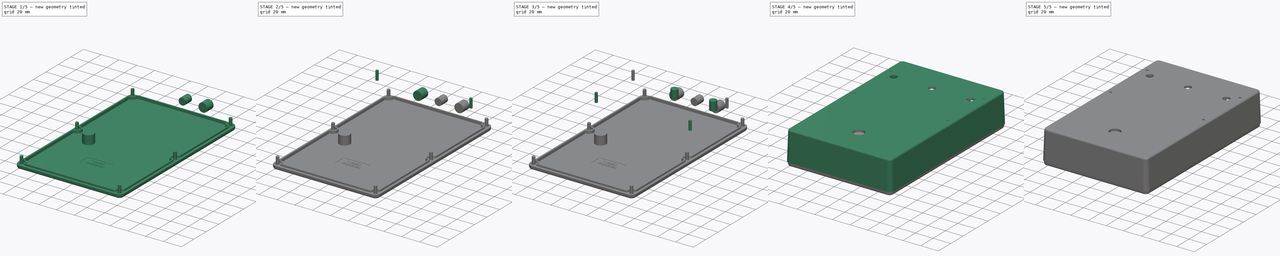
[diagram: build sequence overview — one tinted view per stage of 5, left to right]
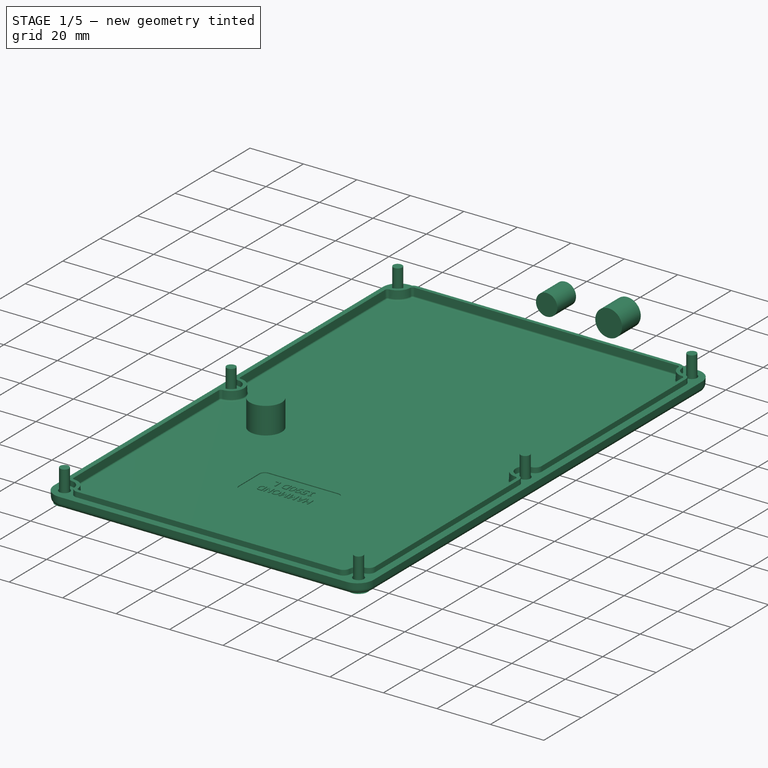
[diagram: stage 1 of 5 — iso view after this stage's code; geometry added in this stage tinted green]
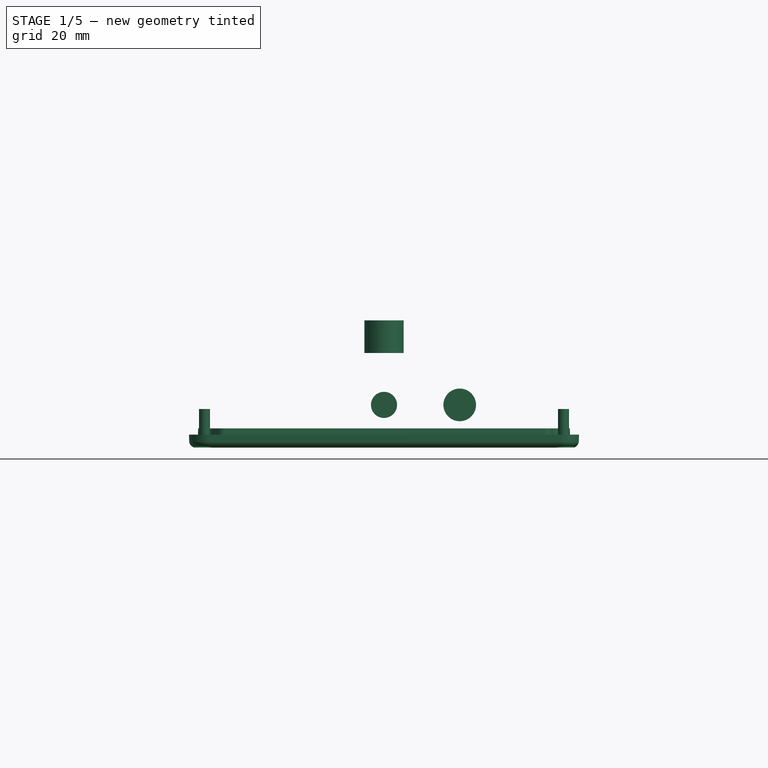
[diagram: stage 1 of 5 — front view after this stage's code; geometry added in this stage tinted green]
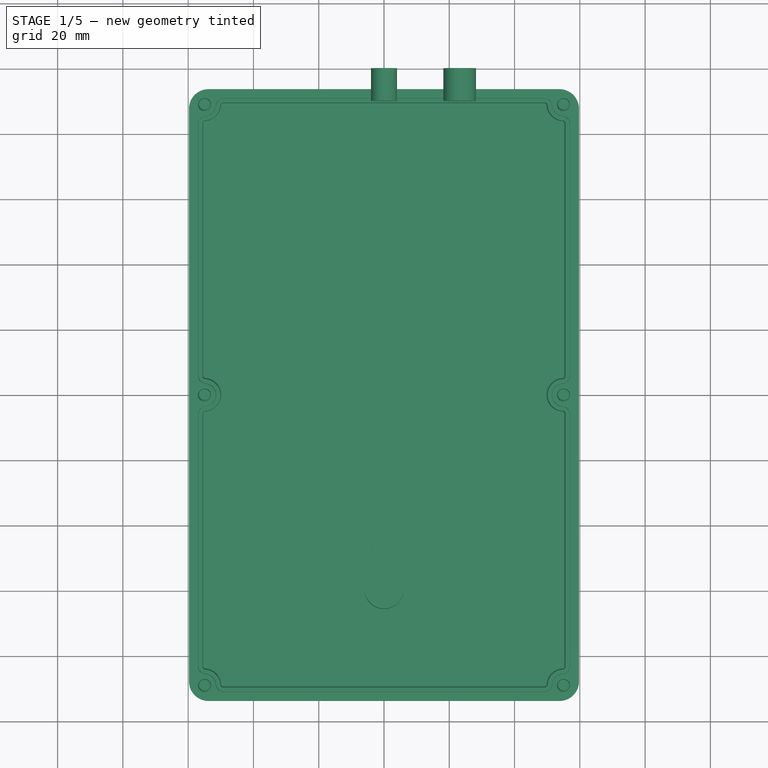
[diagram: stage 1 of 5 — top view after this stage's code; geometry added in this stage tinted green]
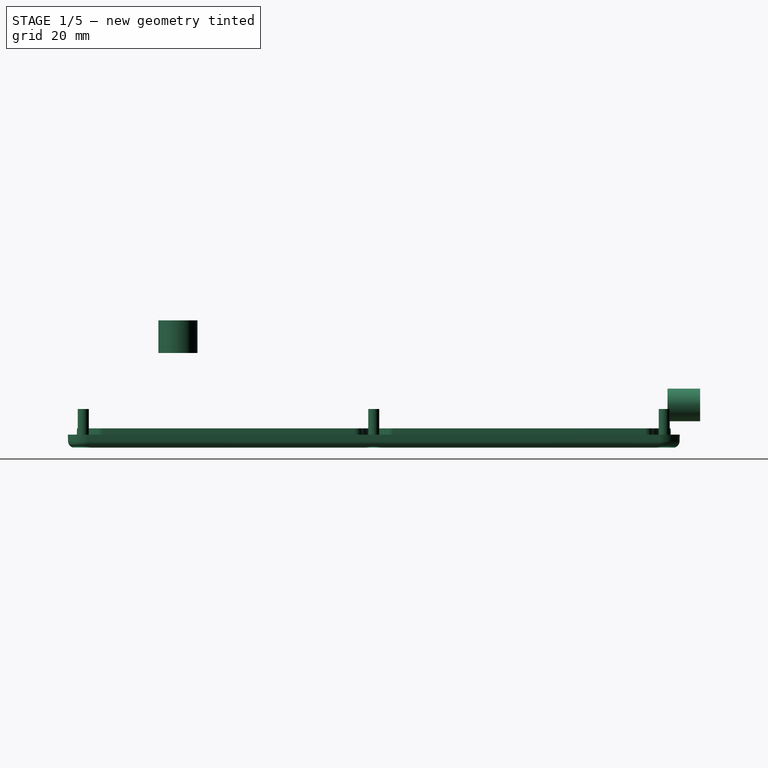
[diagram: stage 1 of 5 — right view after this stage's code; geometry added in this stage tinted green]
FCSTD DOCUMENT  (FreeCAD 0.19R17089 +1543 (Git))
Label: #000-000 - Mu-Tron Phasor II - ASM3
License: All rights reserved
LicenseURL: http://en.wikipedia.org/wiki/All_rights_reserved
objects: App::Link×106, Part::Feature×44, App::FeaturePython×41, Part::FeaturePython×32, App::Part×12, Part::Cylinder×11, PartDesign::ShapeBinder×9, App::LinkElement×8, PartDesign::Plane×5, Sketcher::SketchObject×5, PartDesign::Body×3, Part::MultiFuse×2, PartDesign::Pocket×2, Part::Cut×1, PartDesign::Pad×1, PartDesign::Revolution×1, PartDesign::CoordinateSystem×1
note: 120 computed .brp shape members not serialized (recipe doc carries the construction recipe); baked Part::Feature solids carry a one-line shape summary decoded from their .brp

FEATURE [PartDesign::Plane] DatumPlane  label="Origin_XY_DatumPlane"
  AttachmentOffset = pos=(-75,-100,0) rot=(0,0,1;0rad)
  Length = 104.339
  MapMode = 5
  Placement = pos=(-75,-100,0) rot=(0,0,1;0rad)
  ResizeMode = 1
  Support = -> [XY_Plane001]
  Width = 200
FEATURE [Part::Feature] Part__Feature  label="#700-001 - 1590DD Box"
  Placement = pos=(0,0,0) rot=(0.707107,0.707107,0;3.14159rad)
  shape: bbox 120 x 188 x 451.1 mm, 273 faces (baked)
FEATURE [Part::Feature] Part__Feature001  label="#700-001 - 1590DD - Lid"
  Placement = pos=(0,0,0) rot=(0,0.707107,0.707107;3.14159rad)
  shape: bbox 187.5 x 5.937 x 119.5 mm, 345 faces (baked)
FEATURE [Part::Feature] Part__Feature002  label="#700-001 - 1590DD - Screw 4/6"
  Placement = pos=(1.2e-14,1.5362,-55) rot=(0,1,0;0.650238rad)
  shape: bbox 6.871 x 11.85 x 6.871 mm, 25 faces (baked)
FEATURE [Part::Feature] Part__Feature003  label="#700-001 - 1590DD - Screw 2/6"
  Placement = pos=(-1.2e-14,1.5362,55) rot=(0,1,0;0.650238rad)
  shape: bbox 6.871 x 11.85 x 6.871 mm, 25 faces (baked)
FEATURE [Part::Feature] Part__Feature004  label="#700-001 - 1590DD - Screw 1/6"
  Placement = pos=(-89,1.5362,55) rot=(0,1,0;0.650238rad)
  shape: bbox 6.871 x 11.85 x 6.871 mm, 25 faces (baked)
FEATURE [Part::Feature] Part__Feature005  label="#700-001 - 1590DD - Screw 3/6"
  Placement = pos=(-89,1.5362,-55) rot=(0,-1,0;0.529817rad)
  shape: bbox 6.871 x 11.85 x 6.871 mm, 25 faces (baked)
FEATURE [Part::Feature] Part__Feature006  label="#700-001 - 1590DD - Screw 5/6"
  Placement = pos=(89,1.5362,55) rot=(0,0,1;0rad)
  shape: bbox 6.871 x 11.85 x 6.871 mm, 25 faces (baked)
FEATURE [Part::Feature] Part__Feature007  label="#700-001 - 1590DD - Screw 6/6"
  Placement = pos=(89,1.5362,-55) rot=(0,0,1;0rad)
  shape: bbox 6.871 x 11.85 x 6.871 mm, 25 faces (baked)
FEATURE [Part::MultiFuse] Fusion  label="#700-000 - Enclosure - Lid & Screws, Fusion"
  Placement = pos=(0,0,0) rot=(0.57735,-0.57735,0.57735;4.18879rad)
  Shapes = -> [Part__Feature001,Part__Feature004,Part__Feature003,Part__Feature005,Part__Feature002,Part__Feature006,Part__Feature007]
FEATURE [Part::Cylinder] Cylinder008  label="Drill - Audio Jack 2/2 [D=10.0, X=23.2, Z=9.1]"
  Angle = 360
  AttacherType = Attacher::AttachEngine3D
  Height = 10
  Placement = pos=(23.2,90,9.1) rot=(-1,0,0;1.5708rad)
  Radius = 5
  expr: .Placement.Base.z = 1 + 1.6000000000000001 + 6.5
FEATURE [Part::Cylinder] Cylinder009  label="Drill - Power Jack [D=8.0, X=0.0, Y=9.1]"
  Angle = 360
  AttacherType = Attacher::AttachEngine3D
  Height = 10
  Placement = pos=(0,90,9.1) rot=(-1,0,0;1.5708rad)
  Radius = 4
FEATURE [PartDesign::Plane] DatumPlane002  label="DatumPlane_Rear_Inside"
  Length = 24.068
  MapMode = 5
  Placement = pos=(2.03e-14,91.387,3.19131) rot=(0,0.71934,-0.694658;3.14159rad)
  ResizeMode = 0
  Support = -> [ShapeBinder006]
  Width = 24.7538
FEATURE [PartDesign::Plane] DatumPlane003  label="DatumPlane_Top_Inside"
  Length = 24
  MapMode = 5
  Placement = pos=(0,0,30.5) rot=(0.707107,0.707107,0;3.14159rad)
  ResizeMode = 0
  Support = -> [ShapeBinder004]
  Width = 24
FEATURE [PartDesign::Plane] DatumPlane004  label="DatumPlane_Lid_Inside"
  Length = 24
  MapMode = 5
  Placement = pos=(0,0,-1.5) rot=(0,0,1;1.5708rad)
  ResizeMode = 0
  Support = -> [ShapeBinder]
  Width = 24
FEATURE [PartDesign::Body] Body  label="Datum References"
  Group = -> [DatumPlane,DatumPlane001,ShapeBinder,ShapeBinder001,ShapeBinder002,ShapeBinder003,ShapeBinder004,ShapeBinder005,ShapeBinder006,ShapeBinder007,ShapeBinder008,DatumPlane002,DatumPlane003,DatumPlane004]
  Origin = -> Origin001
  SingleSolid = true
FEATURE [App::Part] Part003  label="#700-000 - Datum References"
  Group = -> [Body]
  Origin = -> Origin004
FEATURE [Part::Cylinder] Cylinder010  label="Drill - Footswitch [D=12.0, X=0.0, Y=-60.0]"
  Angle = 360
  AttacherType = Attacher::AttachEngine3D
  Height = 10
  Placement = pos=(0,-60,25) rot=(0,0,1;0rad)
  Radius = 6
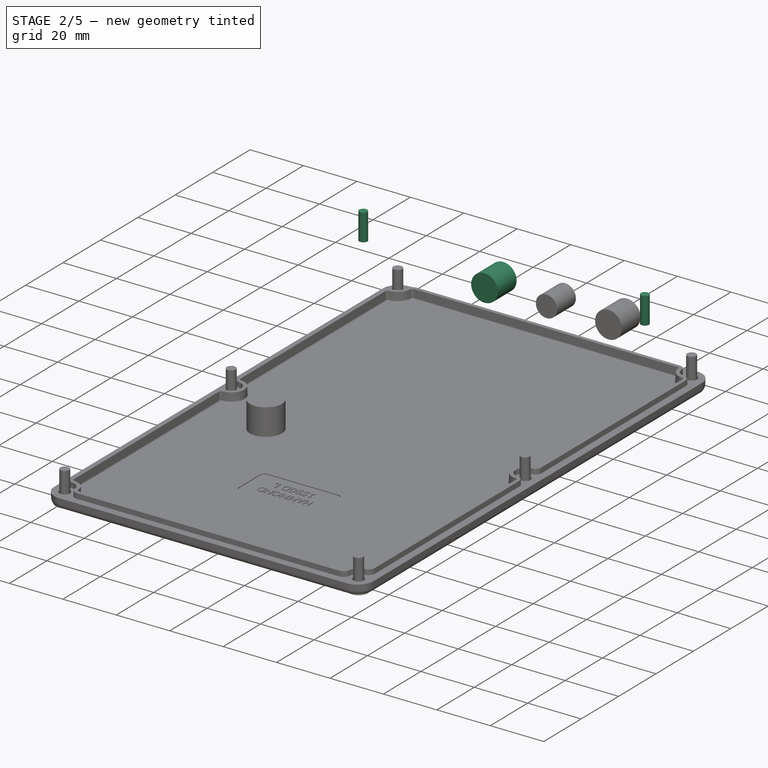
[diagram: stage 2 of 5 — iso view after this stage's code; geometry added in this stage tinted green]
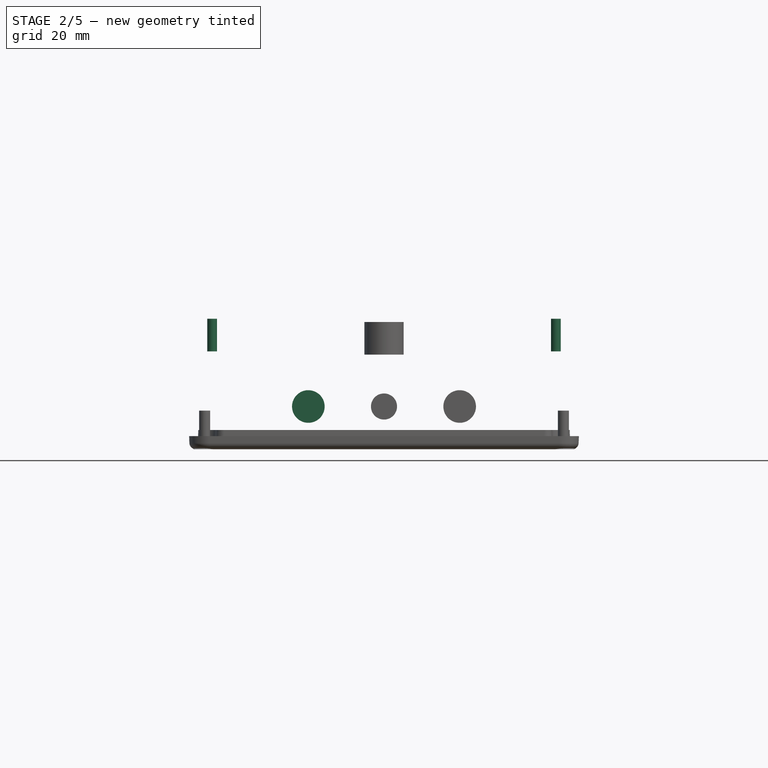
[diagram: stage 2 of 5 — front view after this stage's code; geometry added in this stage tinted green]
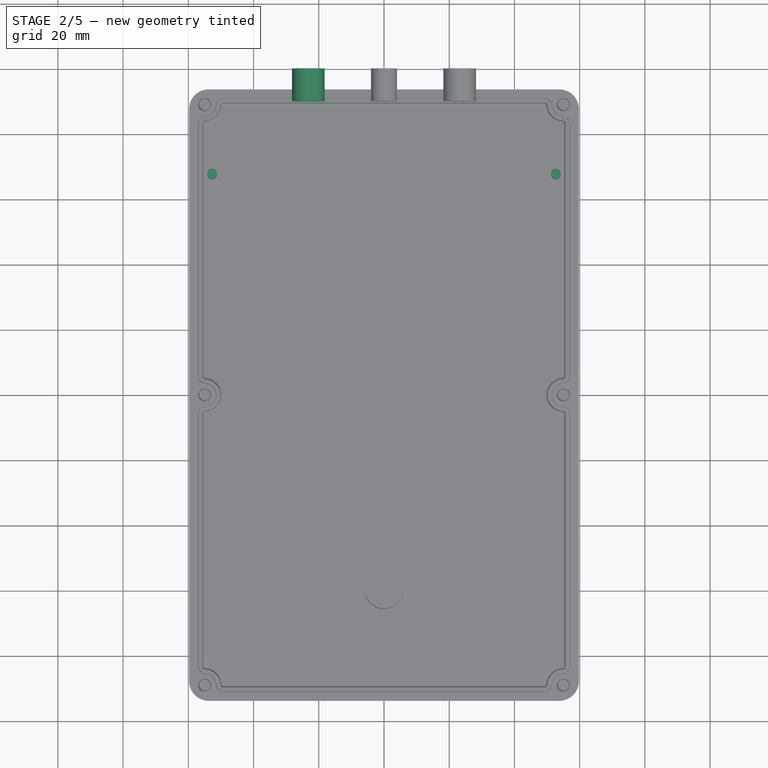
[diagram: stage 2 of 5 — top view after this stage's code; geometry added in this stage tinted green]
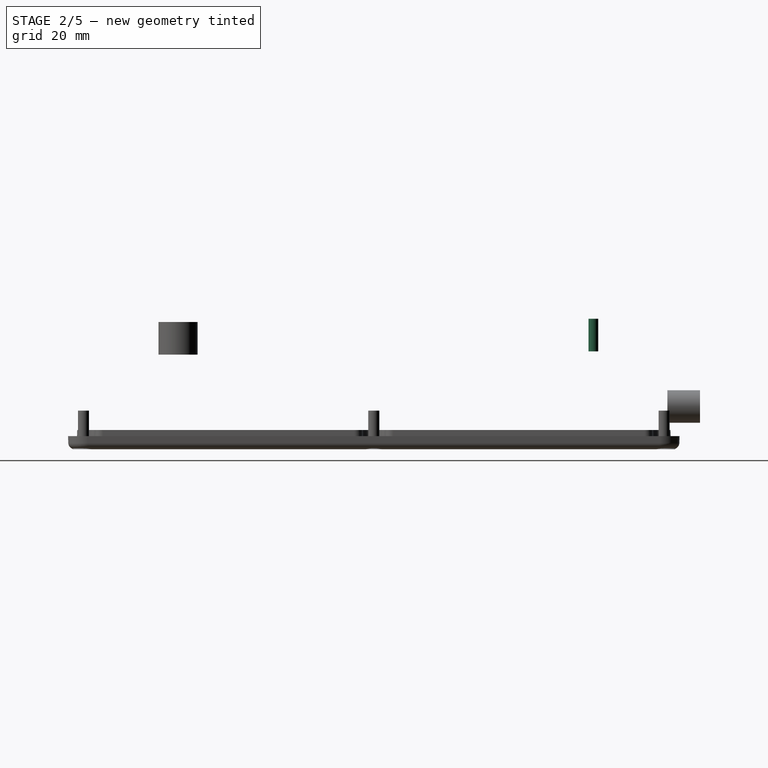
[diagram: stage 2 of 5 — right view after this stage's code; geometry added in this stage tinted green]
FEATURE [Part::Cylinder] Cylinder005  label="Drill - Standoff 2/4 [D=3.0, X=-52.705, Y=67.31]"
  Angle = 360
  AttacherType = Attacher::AttachEngine3D
  Height = 10
  Placement = pos=(-52.705,67.31,26) rot=(0,0,1;0rad)
  Radius = 1.5
FEATURE [Part::Cylinder] Cylinder006  label="Drill - Standoff 1/4 [D=3.0, X=52.705, Y=67.31]"
  Angle = 360
  AttacherType = Attacher::AttachEngine3D
  Height = 10
  Placement = pos=(52.705,67.31,26) rot=(0,0,1;0rad)
  Radius = 1.5
FEATURE [App::Part] Part001  label="#700-000 - Enclosure - Lid & Screws"
  Group = -> [Part__Feature004,Part__Feature007,Part__Feature005,Part__Feature001,Part__Feature003,Part__Feature006,Part__Feature002,Fusion]
  Origin = -> Origin002
  Placement = pos=(0,0,0) rot=(0,0,1;3.14159rad)
FEATURE [PartDesign::ShapeBinder] ShapeBinder  label="Enclosure_Lid_Inside"
  Placement = pos=(0,0,0) rot=(0.707107,0.707107,0;3.14159rad)
  Support = -> [Fusion]
  TraceSupport = false
FEATURE [PartDesign::ShapeBinder] ShapeBinder001  label="Enclosure_Lid_Lip"
  Placement = pos=(0,0,0) rot=(0.707107,0.707107,0;3.14159rad)
  Support = -> [Fusion]
  TraceSupport = false
FEATURE [PartDesign::ShapeBinder] ShapeBinder002  label="Enclosure_Lid_Outside"
  Placement = pos=(0,0,0) rot=(0.707107,0.707107,0;3.14159rad)
  Support = -> [Fusion]
  TraceSupport = false
FEATURE [PartDesign::ShapeBinder] ShapeBinder003  label="Enclosure_Box_Top_Outside"
  Placement = pos=(0,0,0) rot=(0.707107,0.707107,0;3.14159rad)
  Support = -> [Part__Feature]
  TraceSupport = false
FEATURE [PartDesign::ShapeBinder] ShapeBinder004  label="Enclosure_Box_Top_Inside"
  Placement = pos=(0,0,0) rot=(0.707107,0.707107,0;3.14159rad)
  Support = -> [Part__Feature]
  TraceSupport = false
FEATURE [PartDesign::ShapeBinder] ShapeBinder005  label="Enclosure_Box_Rear_Outside"
  Placement = pos=(0,0,0) rot=(0.707107,0.707107,0;3.14159rad)
  Support = -> [Part__Feature]
  TraceSupport = false
FEATURE [PartDesign::ShapeBinder] ShapeBinder006  label="Enclosure_Box_Rear_Inside"
  Placement = pos=(0,0,0) rot=(0.707107,0.707107,0;3.14159rad)
  Support = -> [Part__Feature]
  TraceSupport = false
FEATURE [PartDesign::ShapeBinder] ShapeBinder007  label="Enclosure_Box_Front_Outside"
  Placement = pos=(0,0,0) rot=(0.707107,0.707107,0;3.14159rad)
  Support = -> [Part__Feature]
  TraceSupport = false
FEATURE [PartDesign::ShapeBinder] ShapeBinder008  label="Enclosure_Box_Front_Inside"
  Placement = pos=(0,0,0) rot=(0.707107,0.707107,0;3.14159rad)
  Support = -> [Part__Feature]
  TraceSupport = false
FEATURE [Part::Cylinder] Cylinder007  label="Drill - Audio Jack 1/2 [D=10.0, X=-23.2, Z=9.1]"
  Angle = 360
  AttacherType = Attacher::AttachEngine3D
  Height = 10
  Placement = pos=(-23.2,90,9.1) rot=(-1,0,0;1.5708rad)
  Radius = 5
  expr: .Placement.Base.z = 1 + 1.6000000000000001 + 6.5
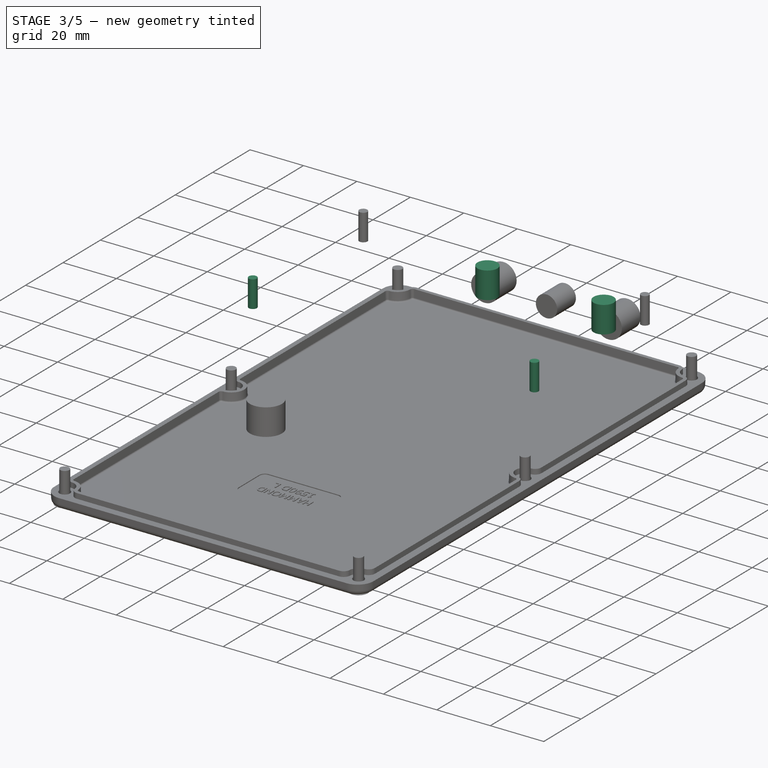
[diagram: stage 3 of 5 — iso view after this stage's code; geometry added in this stage tinted green]
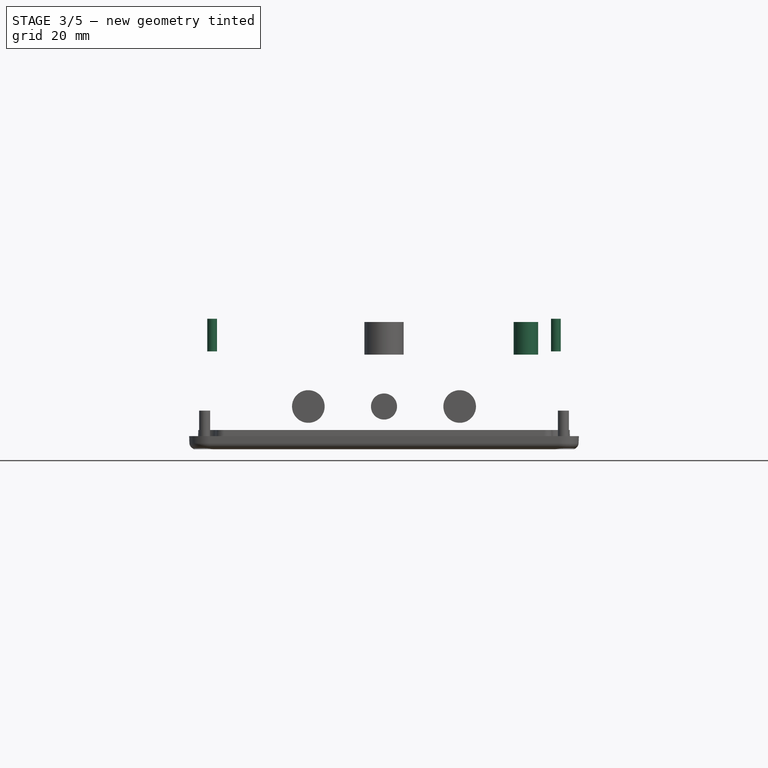
[diagram: stage 3 of 5 — front view after this stage's code; geometry added in this stage tinted green]
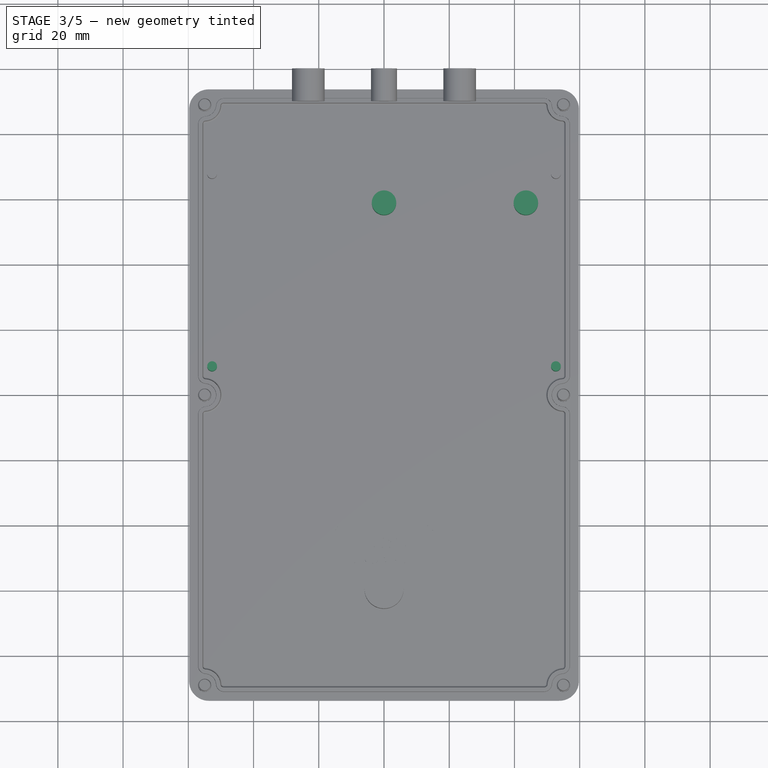
[diagram: stage 3 of 5 — top view after this stage's code; geometry added in this stage tinted green]
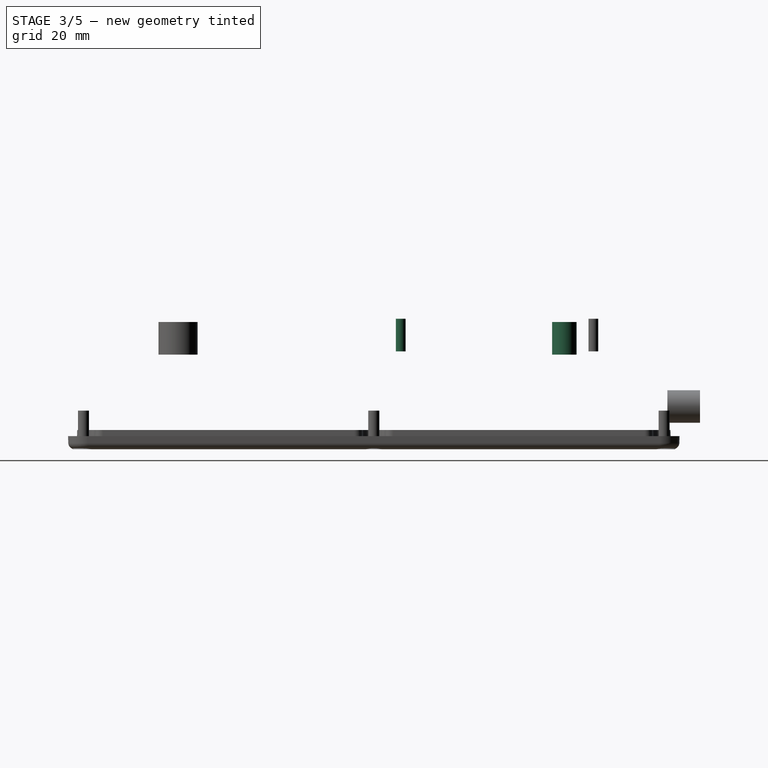
[diagram: stage 3 of 5 — right view after this stage's code; geometry added in this stage tinted green]
FEATURE [Part::Cylinder] Cylinder001  label="Drill - Potentiometer - Depth [D7.5, X=0.0, Y = 58.42]]"
  Angle = 360
  AttacherType = Attacher::AttachEngine3D
  Height = 10
  Placement = pos=(0,58.42,25) rot=(0,0,1;0rad)
  Radius = 3.75
FEATURE [Part::Cylinder] Cylinder002  label="Drill - Potentiometer - Feedback [D=7.5, X=43.5, Y=58.42]"
  Angle = 360
  AttacherType = Attacher::AttachEngine3D
  Height = 10
  Placement = pos=(43.498,58.42,25) rot=(0,0,1;0rad)
  Radius = 3.75
FEATURE [PartDesign::Plane] DatumPlane001  label="Enclosure_Face_XY_DatumPlane"
  Length = 24
  MapMode = 5
  Placement = pos=(0,0,30.5) rot=(1,0,0;3.14159rad)
  ResizeMode = 0
  Width = 24
FEATURE [Part::Cylinder] Cylinder003  label="Drill - Standoff 4/4 [D=3.0, X=-52.705, Y=8.26]"
  Angle = 360
  AttacherType = Attacher::AttachEngine3D
  Height = 10
  Placement = pos=(-52.705,8.26,26) rot=(0,0,1;0rad)
  Radius = 1.5
FEATURE [Part::Cylinder] Cylinder004  label="Drill - Standoff 3/4 [D=3.0, X=52.705, Y=8.26]"
  Angle = 360
  AttacherType = Attacher::AttachEngine3D
  Height = 10
  Placement = pos=(52.705,8.26,26) rot=(0,0,1;0rad)
  Radius = 1.5
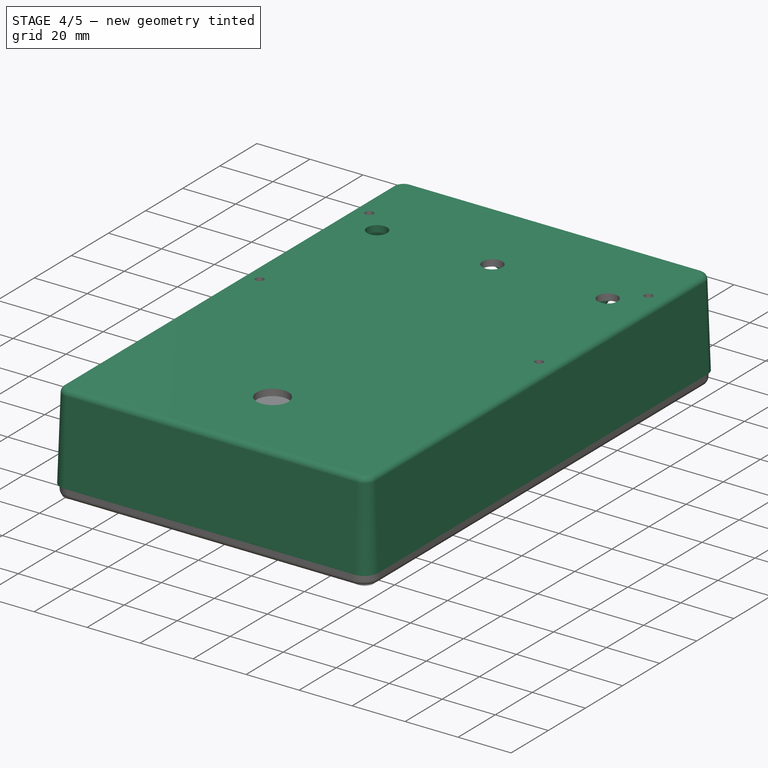
[diagram: stage 4 of 5 — iso view after this stage's code; geometry added in this stage tinted green]
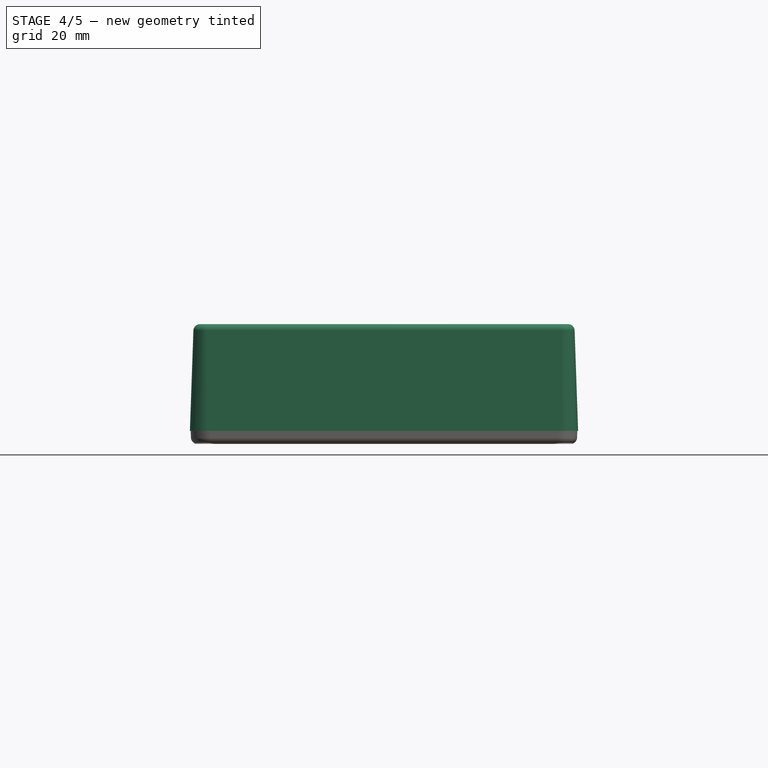
[diagram: stage 4 of 5 — front view after this stage's code; geometry added in this stage tinted green]
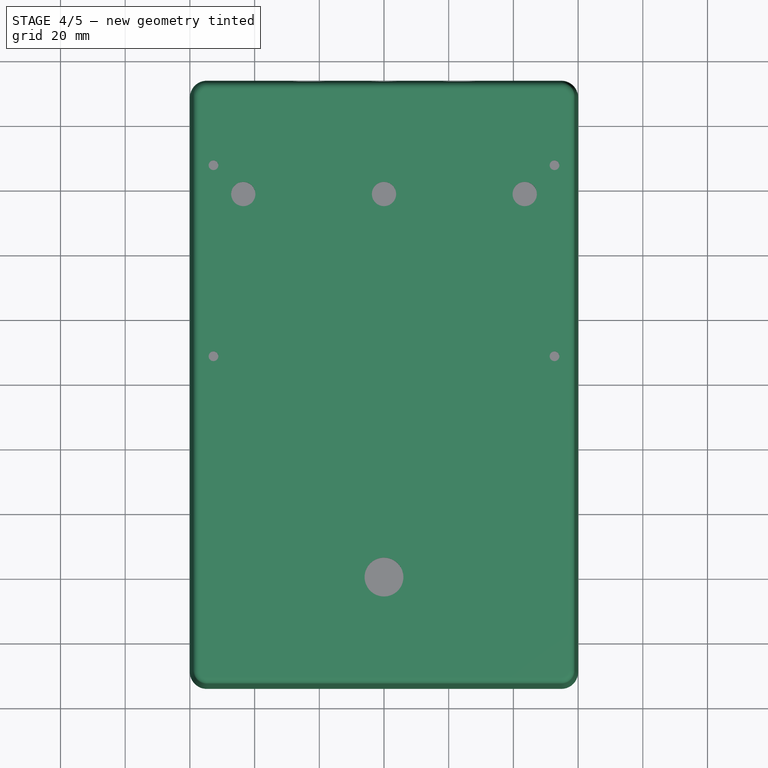
[diagram: stage 4 of 5 — top view after this stage's code; geometry added in this stage tinted green]
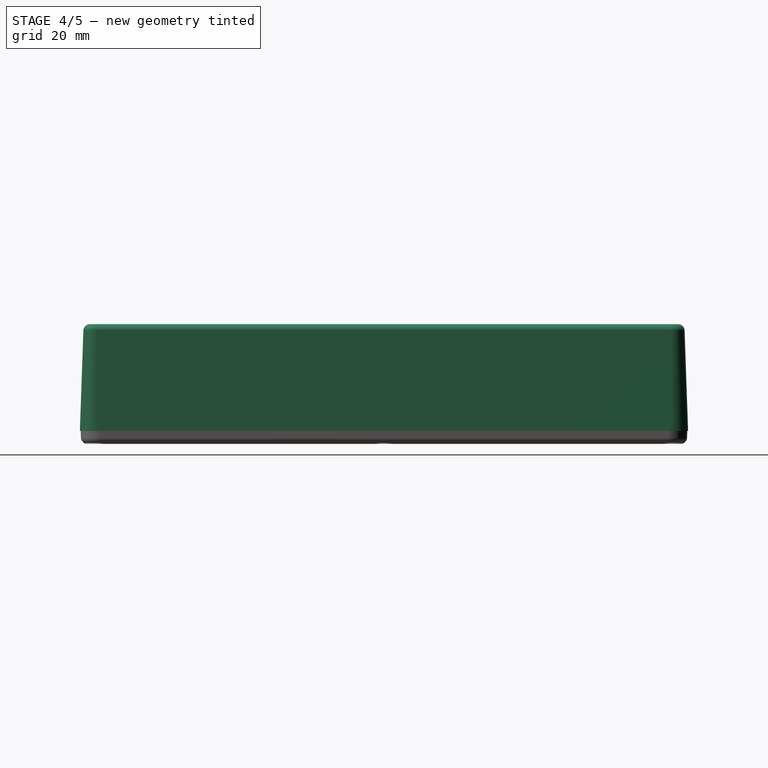
[diagram: stage 4 of 5 — right view after this stage's code; geometry added in this stage tinted green]
FEATURE [Part::Cylinder] Cylinder  label="Drill - Potentiometer - Rate [D=7.5, X=-43.5, Y=58.42]"
  Angle = 360
  AttacherType = Attacher::AttachEngine3D
  Height = 10
  Placement = pos=(-43.498,58.42,25) rot=(0,0,1;0rad)
  Radius = 3.75
FEATURE [Part::MultiFuse] Fusion001  label="Drills"
  Shapes = -> [Cylinder,Cylinder002,Cylinder001,Cylinder003,Cylinder004,Cylinder005,Cylinder006,Cylinder007,Cylinder008,Cylinder009,Cylinder010]
FEATURE [Part::Cut] Cut  label="#700-000 - Enclosure - Box, Drilled"
  Base = -> Part__Feature
  Tool = -> Fusion001
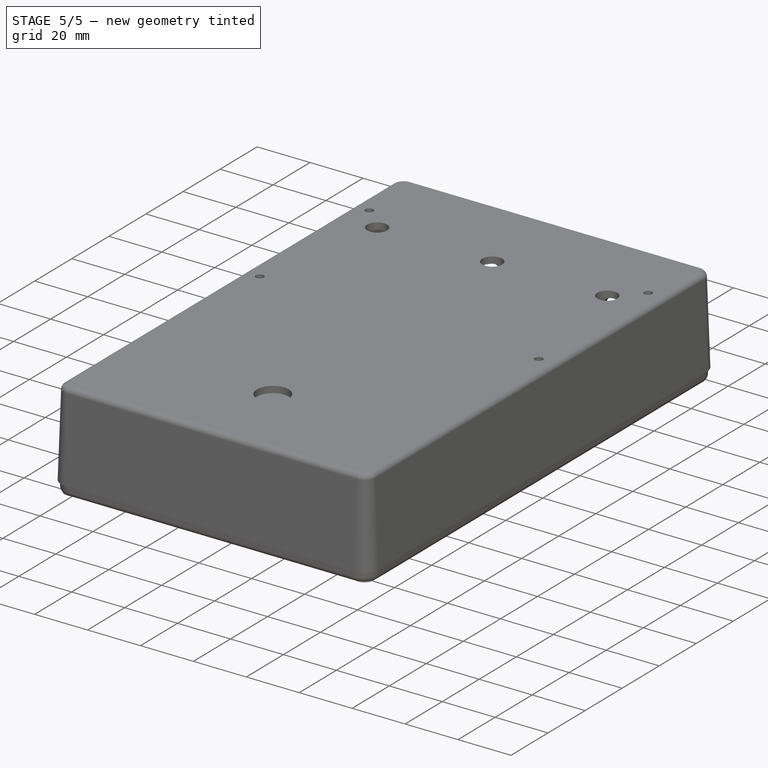
[diagram: stage 5 of 5 — iso view after this stage's code; geometry added in this stage tinted green]
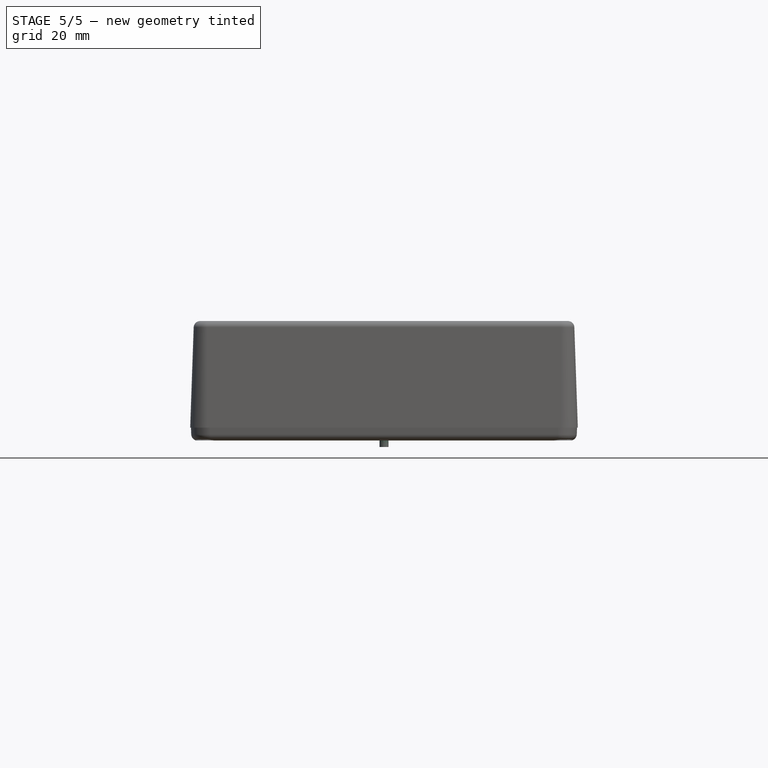
[diagram: stage 5 of 5 — front view after this stage's code; geometry added in this stage tinted green]
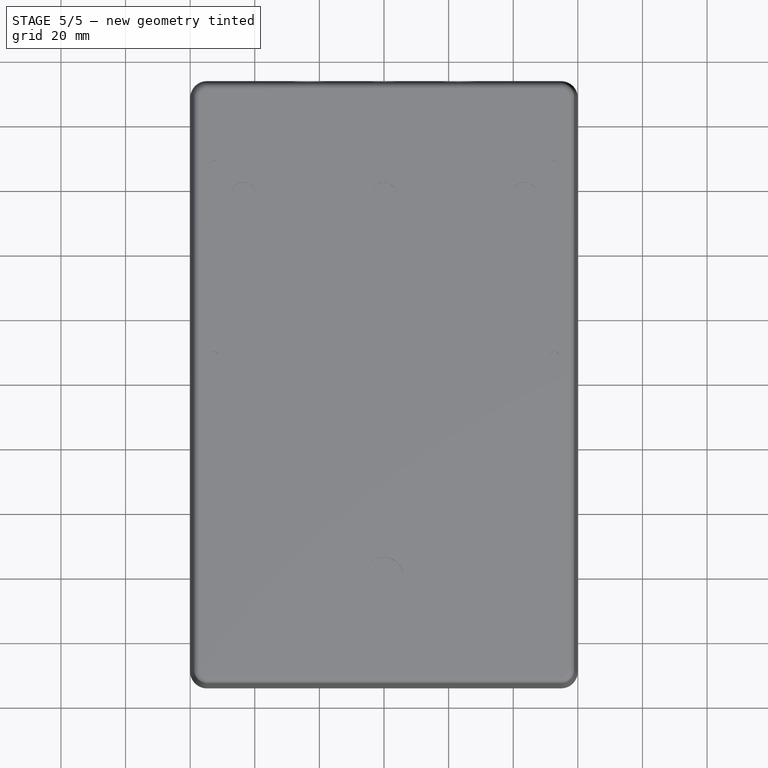
[diagram: stage 5 of 5 — top view after this stage's code; geometry added in this stage tinted green]
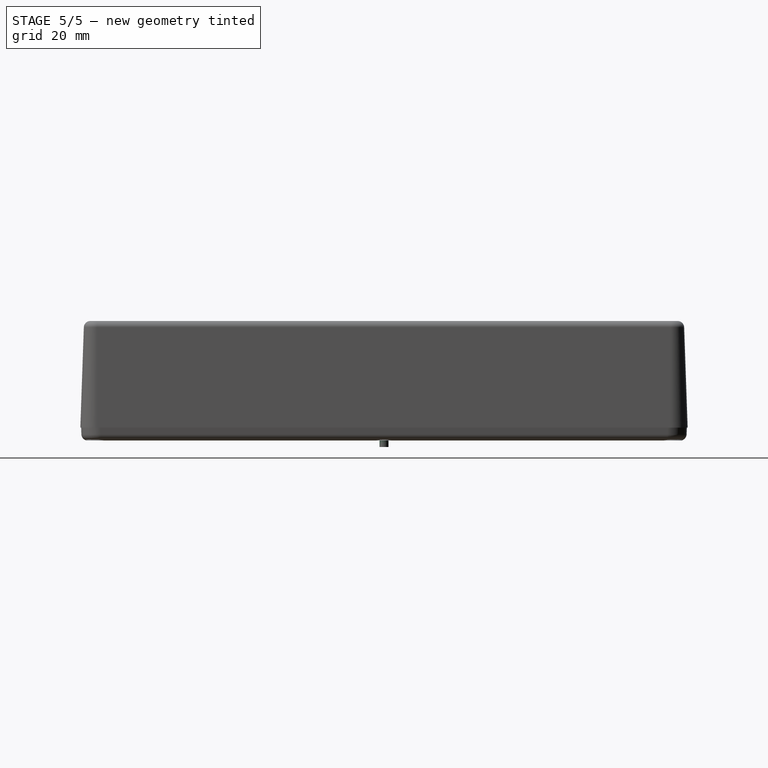
[diagram: stage 5 of 5 — right view after this stage's code; geometry added in this stage tinted green]
FEATURE [App::Part] Part002  label="#700-000 - Enclosure - Box, Machined"
  Group = -> [Part__Feature,Fusion001,Cylinder002,Cylinder006,Cylinder004,Cylinder005,Cylinder,Cylinder001,Cylinder003,Cut]
  Origin = -> Origin003
FEATURE [App::Part] Part  label="#700-000-A - Enclosure [1590DD, Portrait]"
  Group = -> [Part001,Part002,Part003]
  Origin = -> Origin
  Placement = pos=(52.7203,37.129,4.757e-13) rot=(0,0,-1;0.54568rad)
FEATURE [Sketcher::SketchObject] Sketch
  MapMode = 5
  Support = -> [XY_Plane005]
  sketch-geometry (7):
    g0: LineSegment StartX=2.35 StartY=1.35677 StartZ=0 EndX=0 EndY=2.71355 EndZ=0
    g1: LineSegment StartX=0 StartY=2.71355 StartZ=0 EndX=-2.35 EndY=1.35677 EndZ=0
    g2: LineSegment StartX=-2.35 StartY=1.35677 StartZ=0 EndX=-2.35 EndY=-1.35677 EndZ=0
    g3: LineSegment StartX=-2.35 StartY=-1.35677 StartZ=0 EndX=-2.2e-15 EndY=-2.71355 EndZ=0
    g4: LineSegment StartX=-2.2e-15 StartY=-2.71355 StartZ=0 EndX=2.35 EndY=-1.35677 EndZ=0
    g5: LineSegment StartX=2.35 StartY=-1.35677 StartZ=0 EndX=2.35 EndY=1.35677 EndZ=0
    g6: Circle [constr] CenterX=0 CenterY=0 CenterZ=0 NormalX=0 NormalY=0 NormalZ=1 AngleXU=0 Radius=2.71355
  constraints (16):
    c: Coincident(g0,g1)
    c: Coincident(g1,g2)
    c: Coincident(g2,g3)
    c: Coincident(g3,g4)
    c: Coincident(g4,g5)
    c: Coincident(g5,g0)
    c: Equal(g0, g1-g5) x5
    c: PointOnObject(g0,g6)
    c: PointOnObject(g1,g6)
    c: PointOnObject(g2,g6)
    c: PointOnObject(g3,g6)
    c: PointOnObject(g4,g6)
    c: PointOnObject(g5,g6)
    c: Coincident(g6,g-1)
    c: PointOnObject(g0,g-2)
    c: DistanceX(g1,g0) = 4.7
FEATURE [PartDesign::Pad] Pad
  ClaimChildren = false
  Length = 12
  Length2 = 100
  Profile = -> Sketch
  Type = 0
FEATURE [Sketcher::SketchObject] Sketch001
  MapMode = 5
  Placement = pos=(0,0,0) rot=(1,0,0;3.14159rad)
  Support = -> [Pad]
  sketch-geometry (1):
    g0: Circle CenterX=0 CenterY=0 CenterZ=0 NormalX=0 NormalY=0 NormalZ=1 AngleXU=0 Radius=1.5
  constraints (2):
    c: Coincident(g0,g-1)
    c: Radius(g0) = 1.5
FEATURE [PartDesign::Pocket] Pocket
  BaseFeature = -> Pad
  ClaimChildren = false
  Length = 5
  Length2 = 100
  Profile = -> Sketch001
  Type = 1
FEATURE [PartDesign::Body] Body001  label="Hex_Spacer_FF_M3x12_FF4.7"
  Group = -> [Sketch,Pad,Sketch001,Pocket]
  Origin = -> Origin005
  Tip = -> Pocket
FEATURE [App::LinkElement] Link_i0
  LinkPlacement = pos=(-40.7487,4.23327,-3.91e-14) rot=(0,0,1;0rad)
  LinkedObject = -> Body001
  Placement = pos=(-40.7487,4.23327,-3.91e-14) rot=(0,0,1;0rad)
FEATURE [App::LinkElement] Link_i1
  LinkPlacement = pos=(80,-7.62939e-06,0) rot=(0,0,1;0rad)
  LinkedObject = -> Body001
  Placement = pos=(80,-7.62939e-06,0) rot=(0,0,1;0rad)
FEATURE [App::LinkElement] Link_i2
  LinkPlacement = pos=(-10.1018,54.7077,2.84e-14) rot=(0,0,1;1.1162rad)
  LinkedObject = -> Body001
  Placement = pos=(-10.1018,54.7077,2.84e-14) rot=(0,0,1;1.1162rad)
FEATURE [App::LinkElement] Link_i3
  LinkPlacement = pos=(49.3531,-50.4744,-2.84e-14) rot=(0,0,1;0rad)
  LinkedObject = -> Body001
  Placement = pos=(49.3531,-50.4744,-2.84e-14) rot=(0,0,1;0rad)
FEATURE [App::Link] Link  label="Hex_Spacer_FF_M3x12_FF4.008"
  ElementCount = 4
  ElementList = -> [Link_i0,Link_i1,Link_i2,Link_i3]
  LinkPlacement = pos=(52.705,67.31,18.5) rot=(0,0,1;0rad)
  LinkedObject = -> Body001
  Placement = pos=(52.705,67.31,18.5) rot=(0,0,1;0rad)
FEATURE [Sketcher::SketchObject] Sketch002
  MapMode = 5
  Placement = pos=(0,0,0) rot=(1,0,0;1.5708rad)
  Support = -> [XZ_Plane006]
  sketch-geometry (11):
    g0: LineSegment StartX=0 StartY=-6 StartZ=0 EndX=-1.4 EndY=-6 EndZ=0
    g1: LineSegment StartX=-1.4 StartY=-6 StartZ=0 EndX=-1.4 EndY=0 EndZ=0
    g2: LineSegment StartX=-1.4 StartY=0 StartZ=0 EndX=-2.9 EndY=0 EndZ=0
    g3: LineSegment StartX=-2.9 StartY=0 StartZ=0 EndX=-2.9 EndY=1.5 EndZ=0
    g4: LineSegment StartX=0 StartY=-6 StartZ=0 EndX=0 EndY=2 EndZ=0
    g5: Circle [constr] CenterX=0 CenterY=2 CenterZ=0 NormalX=0 NormalY=0 NormalZ=1 AngleXU=0 Radius=0.3
    g6: Circle [constr] CenterX=-1.27 CenterY=2.02886 CenterZ=0 NormalX=0 NormalY=0 NormalZ=1 AngleXU=0 Radius=0.3
    g7: Circle [constr] CenterX=-2.9 CenterY=1.5 CenterZ=0 NormalX=0 NormalY=0 NormalZ=1 AngleXU=0 Radius=0.3
    g8: BSplineCurve PolesCount=3 KnotsCount=2 Degree=2 IsPeriodic=0
    g9: GeomPoint [constr] X=0 Y=2 Z=0
    g10: GeomPoint [constr] X=-2.9 Y=1.5 Z=0
  constraints (26):
    c: PointOnObject(g0,g-2)
    c: Horizontal(g0)
    c: Coincident(g0,g1)
    c: PointOnObject(g1,g-1)
    c: Vertical(g1)
    c: Coincident(g1,g2)
    c: PointOnObject(g2,g-1)
    c: Coincident(g2,g3)
    c: Vertical(g3)
    c: Coincident(g0,g4)
    c: PointOnObject(g4,g-2)
    c: DistanceX(g0,g0) = 1.4
    c: DistanceX(g2,g-1) = 2.9
    c: DistanceY(g3,g3) = 1.5
    c: DistanceY(g-1,g4) = 2
    c: DistanceY(g0,g-1) = 6
    c: Coincident(g8,g4)
    c: Radius(g5) = 0.3
    c: Equal(g5,g6)
    c: Equal(g5,g7)
    c: Coincident(g8,g3)
    c: InternalAlignment(g5,g8)
    c: InternalAlignment(g6,g8)
    c: InternalAlignment(g7,g8)
    c: InternalAlignment(g9,g8)
    c: InternalAlignment(g10,g8)
FEATURE [PartDesign::Revolution] Revolution
  Angle = 360
  Axis = (0,-2e-16,1)
  Base = (0,0,0)
  ClaimChildren = false
  Placement = pos=(0,0,0) rot=(1,0,0;1.5708rad)
  Profile = -> Sketch002
  ReferenceAxis = -> Sketch002 [V_Axis]
FEATURE [Sketcher::SketchObject] Sketch003
  AttachmentOffset = pos=(0,0,1) rot=(0,0,1;0rad)
  MapMode = 5
  Placement = pos=(0,0,1) rot=(0,0,1;0rad)
  Support = -> [XY_Plane006]
  sketch-geometry (12):
    g0: LineSegment StartX=0.375 StartY=1.5 StartZ=0 EndX=-0.375 EndY=1.5 EndZ=0
    g1: LineSegment StartX=-0.375 StartY=1.5 StartZ=0 EndX=-0.375 EndY=0.375 EndZ=0
    g2: LineSegment StartX=-0.375 StartY=0.375 StartZ=0 EndX=-1.5 EndY=0.375 EndZ=0
    g3: LineSegment StartX=-1.5 StartY=0.375 StartZ=0 EndX=-1.5 EndY=-0.375 EndZ=0
    g4: LineSegment StartX=-1.5 StartY=-0.375 StartZ=0 EndX=-0.375 EndY=-0.375 EndZ=0
    g5: LineSegment StartX=-0.375 StartY=-0.375 StartZ=0 EndX=-0.375 EndY=-1.5 EndZ=0
    g6: LineSegment StartX=-0.375 StartY=-1.5 StartZ=0 EndX=0.375 EndY=-1.5 EndZ=0
    g7: LineSegment StartX=0.375 StartY=-1.5 StartZ=0 EndX=0.375 EndY=-0.375 EndZ=0
    g8: LineSegment StartX=0.375 StartY=-0.375 StartZ=0 EndX=1.5 EndY=-0.375 EndZ=0
    g9: LineSegment StartX=1.5 StartY=-0.375 StartZ=0 EndX=1.5 EndY=0.375 EndZ=0
    g10: LineSegment StartX=1.5 StartY=0.375 StartZ=0 EndX=0.375 EndY=0.375 EndZ=0
    g11: LineSegment StartX=0.375 StartY=0.375 StartZ=0 EndX=0.375 EndY=1.5 EndZ=0
  constraints (32):
    c: Coincident(g0,g1)
    c: Vertical(g1)
    c: Coincident(g1,g2)
    c: Horizontal(g2)
    c: Coincident(g2,g3)
    c: Vertical(g3)
    c: Coincident(g3,g4)
    c: Horizontal(g4)
    c: Coincident(g4,g5)
    c: Coincident(g5,g6)
    c: Horizontal(g6)
    c: Coincident(g6,g7)
    c: Coincident(g7,g8)
    c: Horizontal(g8)
    c: Coincident(g8,g9)
    c: Coincident(g9,g10)
    c: Horizontal(g10)
    c: Coincident(g10,g11)
    c: Coincident(g11,g0)
    c: Vertical(g7)
    c: Symmetric(g0,g0,g-2)
    c: Symmetric(g9,g8,g-1)
    c: Equal(g0,g6)
    c: Equal(g9,g3)
    c: Equal(g10,g2)
    c: DistanceX(g2,g9) = 3
    c: Equal(g2,g4)
    c: DistanceY(g6,g0) = 3
    c: Symmetric(g0,g6,g-1)
    c: Symmetric(g9,g2,g-2)
    c: DistanceX(g0,g0) = 0.75
    c: DistanceY(g9,g9) = 0.75
FEATURE [PartDesign::Pocket] Pocket001
  BaseFeature = -> Revolution
  ClaimChildren = false
  Length = 5
  Length2 = 100
  Placement = pos=(0,0,0) rot=(1,0,0;1.5708rad)
  Profile = -> Sketch003
  Reversed = true
  Type = 1
FEATURE [PartDesign::Body] Body002  label="Screw_M3x6_T_2.0_Panhead"
  Group = -> [Sketch002,Revolution,Sketch003,Pocket001]
  Origin = -> Origin006
  Placement = pos=(0,99,51) rot=(0,0,1;0rad)
  SingleSolid = true
  Tip = -> Pocket001
FEATURE [App::LinkElement] Link001_i0
  LinkPlacement = pos=(132.705,67.31,33) rot=(0,0,1;0rad)
  LinkedObject = -> Body002
  Placement = pos=(132.705,67.31,33) rot=(0,0,1;0rad)
FEATURE [App::LinkElement] Link001_i1
  LinkPlacement = pos=(102.058,16.8356,33) rot=(0,0,1;0rad)
  LinkedObject = -> Body002
  Placement = pos=(102.058,16.8356,33) rot=(0,0,1;0rad)
FEATURE [App::LinkElement] Link001_i2
  LinkPlacement = pos=(42.6032,122.018,33) rot=(0,0,1;0rad)
  LinkedObject = -> Body002
  Placement = pos=(42.6032,122.018,33) rot=(0,0,1;0rad)
FEATURE [App::LinkElement] Link001_i3
  LinkPlacement = pos=(11.9563,71.5433,33) rot=(0,0,1;0rad)
  LinkedObject = -> Body002
  Placement = pos=(11.9563,71.5433,33) rot=(0,0,1;0rad)
FEATURE [App::Link] Link001  label="Screw_M3x6_T_2.0_Panhead001"
  ElementCount = 4
  ElementList = -> [Link001_i0,Link001_i1,Link001_i2,Link001_i3]
  LinkedObject = -> Body002
FEATURE [PartDesign::CoordinateSystem] Local_CS_3323
  AttacherType = Attacher::AttachEngine3D
FEATURE [Part::Feature] Pcb_3323
  Placement = pos=(-147.637,134.62,0) rot=(0,0,1;0rad)
  shape: bbox 112.4 x 102.9 x 1.6 mm, 759 faces (baked)
FEATURE [Sketcher::SketchObject] PCB_Sketch_3323
  sketch-geometry (49):
    g0: LineSegment StartX=48.5775 StartY=90.17 StartZ=0 EndX=41.91 EndY=90.17 EndZ=0
    g1: LineSegment StartX=-41.91 StartY=90.17 StartZ=0 EndX=-48.5775 EndY=90.17 EndZ=0
    g2: LineSegment StartX=-56.1975 StartY=64.135 StartZ=0 EndX=-56.1975 EndY=82.55 EndZ=0
    g3: LineSegment StartX=56.1975 StartY=5.715 StartZ=0 EndX=56.1975 EndY=52.705 EndZ=0
    g4: LineSegment StartX=54.9275 StartY=53.34 StartZ=0 EndX=55.5625 EndY=53.34 EndZ=0
    g5: LineSegment StartX=54.9275 StartY=63.5 StartZ=0 EndX=55.5625 EndY=63.5 EndZ=0
    g6: LineSegment StartX=-54.9275 StartY=63.5 StartZ=0 EndX=-55.5625 EndY=63.5 EndZ=0
    g7: LineSegment StartX=-54.9275 StartY=53.34 StartZ=0 EndX=-55.5625 EndY=53.34 EndZ=0
    g8: LineSegment StartX=-54.9275 StartY=5.08 StartZ=0 EndX=-55.5625 EndY=5.08 EndZ=0
    g9: LineSegment StartX=49.2125 StartY=89.535 StartZ=0 EndX=49.2125 EndY=88.9 EndZ=0
    g10: LineSegment StartX=55.5625 StartY=83.185 StartZ=0 EndX=54.9275 EndY=83.185 EndZ=0
    g11: LineSegment StartX=55.5625 StartY=5.08 StartZ=0 EndX=54.9275 EndY=5.08 EndZ=0
    g12: LineSegment StartX=55.5625 StartY=-5.08 StartZ=0 EndX=54.9275 EndY=-5.08 EndZ=0
    g13: LineSegment StartX=-54.9275 StartY=-12.7 StartZ=0 EndX=-55.5625 EndY=-12.7 EndZ=0
    g14: LineSegment StartX=-54.9275 StartY=-5.08 StartZ=0 EndX=-55.5625 EndY=-5.08 EndZ=0
    g15: LineSegment StartX=-54.9275 StartY=83.185 StartZ=0 EndX=-55.5625 EndY=83.185 EndZ=0
    g16: LineSegment StartX=-49.2125 StartY=88.9 StartZ=0 EndX=-49.2125 EndY=89.535 EndZ=0
    g17: LineSegment StartX=-56.1975 StartY=-5.715 StartZ=0 EndX=-56.1975 EndY=-12.065 EndZ=0
    g18: LineSegment StartX=56.1975 StartY=-5.715 StartZ=0 EndX=56.1975 EndY=-12.065 EndZ=0
    g19: LineSegment StartX=34.29 StartY=90.17 StartZ=0 EndX=-34.29 EndY=90.17 EndZ=0
    g20: LineSegment StartX=56.1975 StartY=64.135 StartZ=0 EndX=56.1975 EndY=82.55 EndZ=0
    g21: LineSegment StartX=-54.9275 StartY=-12.7 StartZ=0 EndX=55.5625 EndY=-12.7 EndZ=0
    g22: LineSegment StartX=-56.1975 StartY=5.715 StartZ=0 EndX=-56.1975 EndY=52.705 EndZ=0
    g23: ArcOfCircle CenterX=-55.5625 CenterY=82.55 CenterZ=0 NormalX=0 NormalY=0 NormalZ=1 AngleXU=0 Radius=0.635 StartAngle=1.5708 EndAngle=3.14159
    g24: ArcOfCircle CenterX=-55.5625 CenterY=64.135 CenterZ=0 NormalX=0 NormalY=0 NormalZ=1 AngleXU=0 Radius=0.635 StartAngle=3.14159 EndAngle=4.71239
    g25: ArcOfCircle CenterX=-55.5625 CenterY=52.705 CenterZ=0 NormalX=0 NormalY=0 NormalZ=1 AngleXU=0 Radius=0.635 StartAngle=1.5708 EndAngle=3.14159
    g26: ArcOfCircle CenterX=-55.5625 CenterY=5.715 CenterZ=0 NormalX=0 NormalY=0 NormalZ=1 AngleXU=0 Radius=0.635 StartAngle=3.14159 EndAngle=4.71239
    g27: ArcOfCircle CenterX=-55.5625 CenterY=-5.715 CenterZ=0 NormalX=0 NormalY=0 NormalZ=1 AngleXU=0 Radius=0.635 StartAngle=1.5708 EndAngle=3.14159
    g28: ArcOfCircle CenterX=-55.5625 CenterY=-12.065 CenterZ=0 NormalX=0 NormalY=0 NormalZ=1 AngleXU=0 Radius=0.635 StartAngle=3.14159 EndAngle=4.71239
    g29: ArcOfCircle CenterX=55.5625 CenterY=-12.065 CenterZ=0 NormalX=0 NormalY=0 NormalZ=1 AngleXU=0 Radius=0.635 StartAngle=4.71239 EndAngle=6.28319
    g30: ArcOfCircle CenterX=55.5625 CenterY=-5.715 CenterZ=0 NormalX=0 NormalY=0 NormalZ=1 AngleXU=0 Radius=0.635 StartAngle=0 EndAngle=1.5708
    g31: ArcOfCircle CenterX=55.5625 CenterY=5.715 CenterZ=0 NormalX=0 NormalY=0 NormalZ=1 AngleXU=0 Radius=0.635 StartAngle=4.71239 EndAngle=6.28319
    g32: ArcOfCircle CenterX=55.5625 CenterY=52.705 CenterZ=0 NormalX=0 NormalY=0 NormalZ=1 AngleXU=0 Radius=0.635 StartAngle=0 EndAngle=1.5708
    g33: ArcOfCircle CenterX=55.5625 CenterY=64.135 CenterZ=0 NormalX=0 NormalY=0 NormalZ=1 AngleXU=0 Radius=0.635 StartAngle=4.71239 EndAngle=6.28319
    g34: ArcOfCircle CenterX=55.5625 CenterY=82.55 CenterZ=0 NormalX=0 NormalY=0 NormalZ=1 AngleXU=0 Radius=0.635 StartAngle=0 EndAngle=1.5708
    g35: ArcOfCircle CenterX=48.5775 CenterY=89.535 CenterZ=0 NormalX=0 NormalY=0 NormalZ=1 AngleXU=0 Radius=0.635 StartAngle=0 EndAngle=1.5708
    g36: ArcOfCircle CenterX=41.91 CenterY=89.535 CenterZ=0 NormalX=0 NormalY=0 NormalZ=1 AngleXU=0 Radius=0.635 StartAngle=1.5708 EndAngle=3.14159
    g37: ArcOfCircle CenterX=34.29 CenterY=89.535 CenterZ=0 NormalX=0 NormalY=0 NormalZ=1 AngleXU=0 Radius=0.635 StartAngle=0 EndAngle=1.5708
    g38: ArcOfCircle CenterX=-34.29 CenterY=89.535 CenterZ=0 NormalX=0 NormalY=0 NormalZ=1 AngleXU=0 Radius=0.635 StartAngle=1.5708 EndAngle=3.14159
    g39: ArcOfCircle CenterX=-41.91 CenterY=89.535 CenterZ=0 NormalX=0 NormalY=0 NormalZ=1 AngleXU=0 Radius=0.635 StartAngle=0 EndAngle=1.5708
    g40: ArcOfCircle CenterX=-48.5775 CenterY=89.535 CenterZ=0 NormalX=0 NormalY=0 NormalZ=1 AngleXU=0 Radius=0.635 StartAngle=1.5708 EndAngle=3.14159
    g41: ArcOfCircle CenterX=38.1 CenterY=89.535 CenterZ=0 NormalX=0 NormalY=0 NormalZ=1 AngleXU=0 Radius=3.175 StartAngle=3.14159 EndAngle=6.28319
    g42: ArcOfCircle CenterX=-38.1 CenterY=90.17 CenterZ=0 NormalX=0 NormalY=0 NormalZ=1 AngleXU=0 Radius=3.23788 StartAngle=3.33899 EndAngle=6.08579
    g43: ArcOfCircle CenterX=54.9275 CenterY=58.42 CenterZ=0 NormalX=0 NormalY=0 NormalZ=1 AngleXU=0 Radius=5.08 StartAngle=1.5708 EndAngle=4.71239
    g44: ArcOfCircle CenterX=-54.9275 CenterY=58.42 CenterZ=0 NormalX=0 NormalY=0 NormalZ=1 AngleXU=0 Radius=5.08 StartAngle=4.71239 EndAngle=7.85398
    g45: ArcOfCircle CenterX=54.9275 CenterY=0 CenterZ=0 NormalX=0 NormalY=0 NormalZ=1 AngleXU=0 Radius=5.08 StartAngle=1.5708 EndAngle=4.71239
    g46: ArcOfCircle CenterX=54.9275 CenterY=88.9 CenterZ=0 NormalX=0 NormalY=0 NormalZ=1 AngleXU=0 Radius=5.715 StartAngle=3.14159 EndAngle=4.71239
    g47: ArcOfCircle CenterX=-54.9275 CenterY=0 CenterZ=0 NormalX=0 NormalY=0 NormalZ=1 AngleXU=0 Radius=5.08 StartAngle=4.71239 EndAngle=7.85398
    g48: ArcOfCircle CenterX=-54.9275 CenterY=88.9 CenterZ=0 NormalX=0 NormalY=0 NormalZ=1 AngleXU=0 Radius=5.715 StartAngle=4.71239 EndAngle=6.28319
  constraints (49):
    c: Coincident(g17,g28)
    c: Coincident(g17,g27)
    c: Coincident(g22,g26)
    c: Coincident(g22,g25)
    c: Coincident(g24,g2)
    c: Coincident(g23,g2)
    c: Coincident(g28,g13)
    c: Coincident(g14,g27)
    c: Coincident(g8,g26)
    c: Coincident(g25,g7)
    c: Coincident(g6,g24)
    c: Coincident(g23,g15)
    c: Coincident(g21,g13)
    c: Coincident(g14,g47)
    c: Coincident(g8,g47)
    c: Coincident(g7,g44)
    c: Coincident(g6,g44)
    c: Coincident(g15,g48)
    c: Coincident(g48,g16)
    c: Coincident(g40,g16)
    c: Coincident(g40,g1)
    c: Coincident(g39,g1)
    c: Coincident(g39,g42)
    c: Coincident(g42,g38)
    c: Coincident(g19,g38)
    c: Coincident(g37,g19)
    c: Coincident(g37,g41)
    c: Coincident(g41,g36)
    c: Coincident(g0,g36)
    c: Coincident(g35,g0)
    c: Coincident(g9,g46)
    c: Coincident(g35,g9)
    c: Coincident(g12,g45)
    c: Coincident(g45,g11)
    c: Coincident(g4,g43)
    c: Coincident(g43,g5)
    c: Coincident(g10,g46)
    c: Coincident(g21,g29)
    c: Coincident(g30,g12)
    c: Coincident(g31,g11)
    c: Coincident(g4,g32)
    c: Coincident(g33,g5)
    c: Coincident(g34,g10)
    c: Coincident(g18,g29)
    c: Coincident(g18,g30)
    c: Coincident(g31,g3)
    c: Coincident(g3,g32)
    c: Coincident(g20,g33)
    c: Coincident(g20,g34)
FEATURE [App::Part] Board_Geoms_3323
  Group = -> [Local_CS_3323,Pcb_3323,PCB_Sketch_3323]
  Origin = -> Origin007
FEATURE [Part::Feature] Shape  label="XU1_LT1054_5DC00D2F"
  Placement = pos=(42.8625,10.16,0) rot=(0,0,1;1.5708rad)
  shape: bbox 9.59 x 7.87 x 7.1 mm, 205 faces (baked)
FEATURE [Part::Feature] Shape001  label="JP17_R_0R_Wire_Jumper_P10.16_5DF1EBD4"
  Placement = pos=(-8.5725,-2.54,0) rot=(0,0,1;1.5708rad)
  shape: bbox 0.55 x 10.88 x 3.709 mm, 7 faces (baked)
FEATURE [App::Link] JP17_R_0R_Wire_Jumper_P10_16_5DF1EBD4_ln_  label="JP16_R_0R_Wire_Jumper_P10.16_5D8DF354"
  LinkPlacement = pos=(30.1625,29.21,0) rot=(0,0,1;1.5708rad)
  LinkedObject = -> Shape001
  Placement = pos=(30.1625,29.21,0) rot=(0,0,1;1.5708rad)
FEATURE [App::Link] JP17_R_0R_Wire_Jumper_P10_16_5DF1EBD4_ln_001  label="JP15_R_0R_Wire_Jumper_P10.16_5DC241EA"
  LinkPlacement = pos=(13.6525,15.24,0) rot=(0,0,1;3.14159rad)
  LinkedObject = -> Shape001
  Placement = pos=(13.6525,15.24,0) rot=(0,0,1;3.14159rad)
FEATURE [App::Link] JP17_R_0R_Wire_Jumper_P10_16_5DF1EBD4_ln_002  label="JP14_R_0R_Wire_Jumper_P10.16_5DC2C7B0"
  LinkPlacement = pos=(26.9875,19.05,0) rot=(0,0,1;1.5708rad)
  LinkedObject = -> Shape001
  Placement = pos=(26.9875,19.05,0) rot=(0,0,1;1.5708rad)
FEATURE [App::Link] JP17_R_0R_Wire_Jumper_P10_16_5DF1EBD4_ln_003  label="JP13_R_0R_Wire_Jumper_P10.16_5DC188E7"
  LinkPlacement = pos=(13.6525,19.05,0) rot=(0,0,1;3.14159rad)
  LinkedObject = -> Shape001
  Placement = pos=(13.6525,19.05,0) rot=(0,0,1;3.14159rad)
FEATURE [App::Link] JP17_R_0R_Wire_Jumper_P10_16_5DF1EBD4_ln_004  label="JP12_R_0R_Wire_Jumper_P10.16_5D8C3305"
  LinkPlacement = pos=(-0.635,12.065,0) rot=(0,0,-1;1.5708rad)
  LinkedObject = -> Shape001
  Placement = pos=(-0.635,12.065,0) rot=(0,0,-1;1.5708rad)
FEATURE [App::Link] JP17_R_0R_Wire_Jumper_P10_16_5DF1EBD4_ln_005  label="JP11_R_0R_Wire_Jumper_P10.16_5D8B2677"
  LinkPlacement = pos=(-24.4475,10.16,0) rot=(0,0,1;1.5708rad)
  LinkedObject = -> Shape001
  Placement = pos=(-24.4475,10.16,0) rot=(0,0,1;1.5708rad)
FEATURE [App::Link] JP17_R_0R_Wire_Jumper_P10_16_5DF1EBD4_ln_006  label="JP10_R_0R_Wire_Jumper_P10.16_5D8B2701"
  LinkPlacement = pos=(27.6225,50.165,0) rot=(0,0,1;3.14159rad)
  LinkedObject = -> Shape001
  Placement = pos=(27.6225,50.165,0) rot=(0,0,1;3.14159rad)
FEATURE [App::Link] JP17_R_0R_Wire_Jumper_P10_16_5DF1EBD4_ln_007  label="JP9_R_0R_Wire_Jumper_P10.16_5DD3D00C"
  LinkPlacement = pos=(13.0175,50.165,0) rot=(0,0,1;3.14159rad)
  LinkedObject = -> Shape001
  Placement = pos=(13.0175,50.165,0) rot=(0,0,1;3.14159rad)
FEATURE [App::Link] JP17_R_0R_Wire_Jumper_P10_16_5DF1EBD4_ln_008  label="JP8_R_0R_Wire_Jumper_P10.16_5DC072A0"
  LinkPlacement = pos=(-11.7475,67.31,0) rot=(0,0,1;0rad)
  LinkedObject = -> Shape001
  Placement = pos=(-11.7475,67.31,0) rot=(0,0,1;0rad)
FEATURE [App::Link] JP17_R_0R_Wire_Jumper_P10_16_5DF1EBD4_ln_009  label="JP7_R_0R_Wire_Jumper_P10.16_5DC277DA"
  LinkPlacement = pos=(29.5275,12.065,0) rot=(0,0,1;1.5708rad)
  LinkedObject = -> Shape001
  Placement = pos=(29.5275,12.065,0) rot=(0,0,1;1.5708rad)
FEATURE [App::Link] JP17_R_0R_Wire_Jumper_P10_16_5DF1EBD4_ln_010  label="JP6_R_0R_Wire_Jumper_P10.16_5DC20B18"
  LinkPlacement = pos=(13.6525,22.86,0) rot=(0,0,1;0rad)
  LinkedObject = -> Shape001
  Placement = pos=(13.6525,22.86,0) rot=(0,0,1;0rad)
FEATURE [App::Link] JP17_R_0R_Wire_Jumper_P10_16_5DF1EBD4_ln_011  label="JP5_R_0R_Wire_Jumper_P10.16_5D8B268E"
  LinkPlacement = pos=(-14.2875,31.75,0) rot=(0,0,1;3.14159rad)
  LinkedObject = -> Shape001
  Placement = pos=(-14.2875,31.75,0) rot=(0,0,1;3.14159rad)
FEATURE [App::Link] JP17_R_0R_Wire_Jumper_P10_16_5DF1EBD4_ln_012  label="JP4_R_0R_Wire_Jumper_P10.16_5D8B2660"
  LinkPlacement = pos=(-34.6075,21.59,0) rot=(0,0,1;1.5708rad)
  LinkedObject = -> Shape001
  Placement = pos=(-34.6075,21.59,0) rot=(0,0,1;1.5708rad)
FEATURE [App::Link] JP17_R_0R_Wire_Jumper_P10_16_5DF1EBD4_ln_013  label="JP3_R_0R_Wire_Jumper_P10.16_5DD3B88C"
  LinkPlacement = pos=(26.9875,66.675,0) rot=(0,0,1;0rad)
  LinkedObject = -> Shape001
  Placement = pos=(26.9875,66.675,0) rot=(0,0,1;0rad)
FEATURE [App::Link] JP17_R_0R_Wire_Jumper_P10_16_5DF1EBD4_ln_014  label="JP2_R_0R_Wire_Jumper_P10.16_5DC16F9F"
  LinkPlacement = pos=(10.4775,82.55,0) rot=(0,0,1;0rad)
  LinkedObject = -> Shape001
  Placement = pos=(10.4775,82.55,0) rot=(0,0,1;0rad)
FEATURE [App::Link] JP17_R_0R_Wire_Jumper_P10_16_5DF1EBD4_ln_015  label="JP1_R_0R_Wire_Jumper_P10.16_5DC0E925"
  LinkPlacement = pos=(-17.4625,81.915,0) rot=(0,0,1;0rad)
  LinkedObject = -> Shape001
  Placement = pos=(-17.4625,81.915,0) rot=(0,0,1;0rad)
FEATURE [Part::Feature] Shape002  label="XJP1_R_0603_1608M_5E0F142D"
  Placement = pos=(39.0525,10.16,-1.6) rot=(0.707107,0.707107,0;3.14159rad)
  shape: bbox 0.8 x 1.6 x 0.45 mm, 22 faces (baked)
FEATURE [App::Part] Bot_3323
  Group = -> [Shape002]
  Origin = -> Origin011
FEATURE [Part::Feature] Shape003  label="XR5_R_CC25_P10.16_H_5E176B90"
  Placement = pos=(44.45,24.765,0) rot=(0,0,-1;1.5708rad)
  shape: bbox 2.5 x 10.96 x 5.1 mm, 11 faces (baked)
FEATURE [Part::Feature] Shape004  label="RV52_Bourns_3362P_5D8A0BC8"
  Placement = pos=(-14.2875,-2.54,0) rot=(0,0,1;3.14159rad)
  shape: bbox 6.706 x 7.036 x 7.295 mm, 550 faces (baked)
FEATURE [App::Link] RV52_Bourns_3362P_5D8A0BC8_ln_  label="RV51_Bourns_3362P_5DCDF837"
  LinkPlacement = pos=(18.0975,74.93,0) rot=(0,0,1;0rad)
  LinkedObject = -> Shape004
  Placement = pos=(18.0975,74.93,0) rot=(0,0,1;0rad)
FEATURE [Part::Feature] Shape005  label="PM1_Open_CASCADE_STEP_translator_6_9_1_cp_5DD3D4CC"
  Placement = pos=(-13.0175,19.05,0) rot=(0,0,1;1.5708rad)
  shape: bbox 19.07 x 19.09 x 15.55 mm, 437 faces, 18 solids (baked)
FEATURE [Part::Feature] Shape006  label="XD11_DO-35_P10.16_5DC00C72"
  Placement = pos=(32.7025,15.24,0) rot=(0,0,-1;1.5708rad)
  shape: bbox 1.862 x 10.84 x 4.391 mm, 17 faces (baked)
FEATURE [App::Link] XD11_DO_35_P10_16_5DC00C72_ln_  label="XD10_DO-35_P10.16_5DC00C63"
  LinkPlacement = pos=(13.0175,-2.54,0) rot=(0,0,1;1.5708rad)
  LinkedObject = -> Shape006
  Placement = pos=(13.0175,-2.54,0) rot=(0,0,1;1.5708rad)
FEATURE [App::Link] XD11_DO_35_P10_16_5DC00C72_ln_001  label="D9_DO-35_P10.16_5D8A06C2"
  LinkPlacement = pos=(-35.8775,-2.54,0) rot=(0,0,1;1.5708rad)
  LinkedObject = -> Shape006
  Placement = pos=(-35.8775,-2.54,0) rot=(0,0,1;1.5708rad)
FEATURE [App::Link] XD11_DO_35_P10_16_5DC00C72_ln_002  label="D8_DO-35_P10.16_5DD3B6E0"
  LinkPlacement = pos=(42.2275,72.39,0) rot=(0,0,1;1.5708rad)
  LinkedObject = -> Shape006
  Placement = pos=(42.2275,72.39,0) rot=(0,0,1;1.5708rad)
FEATURE [App::Link] XR5_R_CC25_P10_16_H_5E176B90_ln_  label="YR3_R_CC25_P10.16_H_5DED7657"
  LinkPlacement = pos=(32.385,47.625,0) rot=(0,0,1;3.14159rad)
  LinkedObject = -> Shape003
  Placement = pos=(32.385,47.625,0) rot=(0,0,1;3.14159rad)
FEATURE [App::Link] XR5_R_CC25_P10_16_H_5E176B90_ln_001  label="XR4_R_CC25_P10.16_H_5DCF4C98"
  LinkPlacement = pos=(35.2425,24.765,0) rot=(0,0,1;1.5708rad)
  LinkedObject = -> Shape003
  Placement = pos=(35.2425,24.765,0) rot=(0,0,1;1.5708rad)
FEATURE [App::Link] XR5_R_CC25_P10_16_H_5E176B90_ln_002  label="XR3_R_CC25_P10.16_H_5DD0A4F3"
  LinkPlacement = pos=(10.4775,-2.54,0) rot=(0,0,1;1.5708rad)
  LinkedObject = -> Shape003
  Placement = pos=(10.4775,-2.54,0) rot=(0,0,1;1.5708rad)
FEATURE [Part::Feature] Shape007  label="RV55_Alpha_RV16AF-41-15R-XXX_5DD3C757"
  Placement = pos=(45.8592,109.64,19.5) rot=(0,0,-1;5.25344rad)
  shape: bbox 25.91 x 22.66 x 30.75 mm, 459 faces (baked)
FEATURE [App::Link] RV55_Alpha_RV16AF_41_15R_XXX_5DD3C757_ln_  label="RV54_Alpha_RV16AF-41-15R-XXX_5DC04847"
  LinkPlacement = pos=(120.221,64.4895,19.5) rot=(0,0,1;4.17134rad)
  LinkedObject = -> Shape007
  Placement = pos=(120.221,64.4895,19.5) rot=(0,0,1;4.17134rad)
FEATURE [App::Link] RV55_Alpha_RV16AF_41_15R_XXX_5DD3C757_ln_001  label="RV53_Alpha_RV16AF-41-15R-XXX_5DF1A8EF"
  LinkPlacement = pos=(83.0402,87.0649,19.5) rot=(0,0,1;1.0472rad)
  LinkedObject = -> Shape007
  Placement = pos=(83.0402,87.0649,19.5) rot=(0,0,1;1.0472rad)
FEATURE [Part::Feature] Shape008  label="XC10_Nichicon_UMA_Straight_D8_H5_P2.5_d0.45_LL2.6_5DC00BE9"
  Placement = pos=(20.6375,27.94,0) rot=(0,0,1;0rad)
  shape: bbox 8.659 x 8.659 x 7.61 mm, 57 faces (baked)
FEATURE [App::Link] XC10_Nichicon_UMA_Straight_D8_H5_P2_5_d0_45_LL2_6_5DC00BE9_ln_  label="XC9_Nichicon_UMA_Straight_D8_H5_P2.5_d0.45_LL2.6_5DC00BB3"
  LinkPlacement = pos=(11.7475,7.62,0) rot=(0,0,1;1.5708rad)
  LinkedObject = -> Shape008
  Placement = pos=(11.7475,7.62,0) rot=(0,0,1;1.5708rad)
FEATURE [Part::Feature] Shape009  label="XC12_FKS2G021001C00KSSD_5DC00BFC"
  Placement = pos=(23.1775,17.145,0) rot=(0,0,1;1.5708rad)
  shape: bbox 4.65 x 15.3 x 10.5 mm, 403 faces (baked)
FEATURE [App::Link] XC12_FKS2G021001C00KSSD_5DC00BFC_ln_  label="XC11_FKS2G021001C00KSSD_5DC00BC6"
  LinkPlacement = pos=(2.2225,-2.5,0) rot=(0,0,-1;1.5708rad)
  LinkedObject = -> Shape009
  Placement = pos=(2.2225,-2.5,0) rot=(0,0,-1;1.5708rad)
FEATURE [Part::Feature] Shape010  label="XC8_Capacitor_Electrolytic_THT_Radial_Angled_D10_H17_P5_d0.6_h1.5_LL2.6_5DC00BE2"
  Placement = pos=(50.4825,40.64,0) rot=(0,0,1;1.5708rad)
  shape: bbox 18.92 x 10.82 x 13.01 mm, 66 faces (baked)
FEATURE [App::Link] XC8_Capacitor_Electrolytic_THT_Radial_Angled_D10_H17_P5_d0_6_h1_5_LL2_6_5DC00BE2_ln_  label="XC7_Capacitor_Electrolytic_THT_Radial_Angled_D10_H17_P5_d0.6_h1.5_LL2.6_5DC00BAC"
  LinkPlacement = pos=(21.9075,-8.89,0) rot=(0,0,1;0rad)
  LinkedObject = -> Shape010
  Placement = pos=(21.9075,-8.89,0) rot=(0,0,1;0rad)
FEATURE [Part::Feature] Shape011  label="C14_FKP2J008201D00HSSD_5D8C32AA"
  Placement = pos=(-41.275,12.7,0) rot=(0,0,-1;1.5708rad)
  shape: bbox 6.15 x 15.3 x 8 mm, 422 faces (baked)
FEATURE [Part::Feature] Shape012  label="C2_FKP2O100331D00JSSD_5DED6ED0"
  Placement = pos=(-40.64,76.835,0) rot=(0,0,-1;1.5708rad)
  shape: bbox 6.15 x 15.3 x 8 mm, 367 faces (baked)
FEATURE [Part::Feature] Shape013  label="XC6_Nichicon_UMA_Straight_D8_H5_P2.5_d0.45_LL2.6_5DCF4B87"
  Placement = pos=(26.9875,40.64,0) rot=(0,0,1;1.5708rad)
  shape: bbox 8.659 x 8.659 x 7.61 mm, 57 faces (baked)
FEATURE [App::Link] XC6_Nichicon_UMA_Straight_D8_H5_P2_5_d0_45_LL2_6_5DCF4B87_ln_  label="XC5_Nichicon_UMA_Straight_D8_H5_P2.5_d0.45_LL2.6_5DC00C11"
  LinkPlacement = pos=(50.165,27.94,0) rot=(0,0,-1;1.5708rad)
  LinkedObject = -> Shape013
  Placement = pos=(50.165,27.94,0) rot=(0,0,-1;1.5708rad)
FEATURE [Part::Feature] Shape014  label="XC3_Nichicon_UMA_Straight_D5_H5_P2_d0.45_LL2.6_5DC00C0A"
  Placement = pos=(32.0675,5.08,0) rot=(0,0,1;1.5708rad)
  shape: bbox 5.412 x 5.412 x 7.61 mm, 57 faces (baked)
FEATURE [App::Link] XC3_Nichicon_UMA_Straight_D5_H5_P2_d0_45_LL2_6_5DC00C0A_ln_  label="XC2_Nichicon_UMA_Straight_D5_H5_P2_d0.45_LL2.6_5DC00C03"
  LinkPlacement = pos=(45.4025,2.2225,0) rot=(0,0,1;0rad)
  LinkedObject = -> Shape014
  Placement = pos=(45.4025,2.2225,0) rot=(0,0,1;0rad)
FEATURE [App::Link] XC3_Nichicon_UMA_Straight_D5_H5_P2_d0_45_LL2_6_5DC00C0A_ln_001  label="XC1_Nichicon_UMA_Straight_D5_H5_P2_d0.45_LL2.6_5DC00BCD"
  LinkPlacement = pos=(40.3225,2.2225,0) rot=(0,0,1;0rad)
  LinkedObject = -> Shape014
  Placement = pos=(40.3225,2.2225,0) rot=(0,0,1;0rad)
FEATURE [App::Link] XC6_Nichicon_UMA_Straight_D8_H5_P2_5_d0_45_LL2_6_5DCF4B87_ln_001  label="XC4_Nichicon_UMA_Straight_D8_H5_P2.5_d0.45_LL2.6_5DC00B97"
  LinkPlacement = pos=(42.8625,-4.1275,0) rot=(0,0,1;0rad)
  LinkedObject = -> Shape013
  Placement = pos=(42.8625,-4.1275,0) rot=(0,0,1;0rad)
FEATURE [App::Link] XC3_Nichicon_UMA_Straight_D5_H5_P2_d0_45_LL2_6_5DC00C0A_ln_002  label="C15_Nichicon_UMA_Straight_D5_H5_P2_d0.45_LL2.6_5DED0ED5"
  LinkPlacement = pos=(-41.275,6.35,0) rot=(0,0,1;0rad)
  LinkedObject = -> Shape014
  Placement = pos=(-41.275,6.35,0) rot=(0,0,1;0rad)
FEATURE [Part::Feature] Shape015  label="C13_Nichicon_UMA_Straight_D4_H5_P1.5_d0.45_LL2.6_5D8A0658"
  Placement = pos=(-40.64,70.485,0) rot=(0,0,-1;1.5708rad)
  shape: bbox 4.33 x 4.33 x 7.61 mm, 61 faces (baked)
FEATURE [App::Link] XR5_R_CC25_P10_16_H_5E176B90_ln_003  label="XR2_R_CC25_P10.16_H_5DCFCEA2"
  LinkPlacement = pos=(32.7025,29.21,0) rot=(0,0,1;1.5708rad)
  LinkedObject = -> Shape003
  Placement = pos=(32.7025,29.21,0) rot=(0,0,1;1.5708rad)
FEATURE [App::Link] XR5_R_CC25_P10_16_H_5E176B90_ln_004  label="XR1_R_CC25_P10.16_H_5DC00CFC"
  LinkPlacement = pos=(15.5575,-2.54,0) rot=(0,0,1;1.5708rad)
  LinkedObject = -> Shape003
  Placement = pos=(15.5575,-2.54,0) rot=(0,0,1;1.5708rad)
FEATURE [App::Link] XR5_R_CC25_P10_16_H_5E176B90_ln_005  label="YR2_R_CC25_P10.16_H_5DC159BC"
  LinkPlacement = pos=(-38.4175,-2.54,0) rot=(0,0,-1;1.5708rad)
  LinkedObject = -> Shape003
  Placement = pos=(-38.4175,-2.54,0) rot=(0,0,-1;1.5708rad)
FEATURE [App::Link] XR5_R_CC25_P10_16_H_5E176B90_ln_006  label="YR1_R_CC25_P10.16_H_5DD10E25"
  LinkPlacement = pos=(-51.1175,40.64,0) rot=(0,0,1;1.5708rad)
  LinkedObject = -> Shape003
  Placement = pos=(-51.1175,40.64,0) rot=(0,0,1;1.5708rad)
FEATURE [App::Link] XR5_R_CC25_P10_16_H_5E176B90_ln_007  label="R57_R_CC25_P10.16_H_5D8A0B50"
  LinkPlacement = pos=(50.4825,76.2,0) rot=(0,0,1;1.5708rad)
  LinkedObject = -> Shape003
  Placement = pos=(50.4825,76.2,0) rot=(0,0,1;1.5708rad)
FEATURE [App::Link] XR5_R_CC25_P10_16_H_5E176B90_ln_008  label="R56_R_CC25_P10.16_H_5DCE18F4"
  LinkPlacement = pos=(44.7675,78.74,0) rot=(0,0,-1;1.5708rad)
  LinkedObject = -> Shape003
  Placement = pos=(44.7675,78.74,0) rot=(0,0,-1;1.5708rad)
FEATURE [App::Link] XR5_R_CC25_P10_16_H_5E176B90_ln_009  label="R45_R_CC25_P10.16_H_5D8A0B22"
  LinkPlacement = pos=(-20.6375,-2.54,0) rot=(0,0,-1;1.5708rad)
  LinkedObject = -> Shape003
  Placement = pos=(-20.6375,-2.54,0) rot=(0,0,-1;1.5708rad)
FEATURE [App::Link] XR5_R_CC25_P10_16_H_5E176B90_ln_010  label="R44_R_CC25_P10.16_H_5D8A0B0B"
  LinkPlacement = pos=(-33.3375,-2.54,0) rot=(0,0,-1;1.5708rad)
  LinkedObject = -> Shape003
  Placement = pos=(-33.3375,-2.54,0) rot=(0,0,-1;1.5708rad)
FEATURE [App::Link] XR5_R_CC25_P10_16_H_5E176B90_ln_011  label="R43_R_CC25_P10.16_H_5D8A0AF4"
  LinkPlacement = pos=(-23.1775,-2.54,0) rot=(0,0,-1;1.5708rad)
  LinkedObject = -> Shape003
  Placement = pos=(-23.1775,-2.54,0) rot=(0,0,-1;1.5708rad)
FEATURE [App::Link] XR5_R_CC25_P10_16_H_5E176B90_ln_012  label="R42_R_CC25_P10.16_H_5D8BE438"
  LinkPlacement = pos=(-30.7975,-2.54,0) rot=(0,0,-1;1.5708rad)
  LinkedObject = -> Shape003
  Placement = pos=(-30.7975,-2.54,0) rot=(0,0,-1;1.5708rad)
FEATURE [App::Link] XR5_R_CC25_P10_16_H_5E176B90_ln_013  label="R41_R_CC25_P10.16_H_5D8A0AC6"
  LinkPlacement = pos=(-26.9875,-2.54,0) rot=(0,0,-1;1.5708rad)
  LinkedObject = -> Shape003
  Placement = pos=(-26.9875,-2.54,0) rot=(0,0,-1;1.5708rad)
FEATURE [App::Link] XR5_R_CC25_P10_16_H_5E176B90_ln_014  label="R39_R_CC25_P10.16_H_5D8A0AAF"
  LinkPlacement = pos=(-5.3975,-2.54,0) rot=(0,0,-1;1.5708rad)
  LinkedObject = -> Shape003
  Placement = pos=(-5.3975,-2.54,0) rot=(0,0,-1;1.5708rad)
FEATURE [App::Link] XR5_R_CC25_P10_16_H_5E176B90_ln_015  label="R37_R_CC25_P10.16_H_5D8A0A98"
  LinkPlacement = pos=(-2.8575,-2.54,0) rot=(0,0,-1;1.5708rad)
  LinkedObject = -> Shape003
  Placement = pos=(-2.8575,-2.54,0) rot=(0,0,-1;1.5708rad)
FEATURE [App::Link] XR5_R_CC25_P10_16_H_5E176B90_ln_016  label="R36_R_CC25_P10.16_H_5D8A0A81"
  LinkPlacement = pos=(18.7325,58.42,0) rot=(0,0,-1;1.5708rad)
  LinkedObject = -> Shape003
  Placement = pos=(18.7325,58.42,0) rot=(0,0,-1;1.5708rad)
FEATURE [App::Link] XR5_R_CC25_P10_16_H_5E176B90_ln_017  label="R35_R_CC25_P10.16_H_5D8A0A6A"
  LinkPlacement = pos=(23.8125,58.42,0) rot=(0,0,-1;1.5708rad)
  LinkedObject = -> Shape003
  Placement = pos=(23.8125,58.42,0) rot=(0,0,-1;1.5708rad)
FEATURE [App::Link] XR5_R_CC25_P10_16_H_5E176B90_ln_018  label="R34_R_CC25_P10.16_H_5D8A0A53"
  LinkPlacement = pos=(21.2725,58.42,0) rot=(0,0,-1;1.5708rad)
  LinkedObject = -> Shape003
  Placement = pos=(21.2725,58.42,0) rot=(0,0,-1;1.5708rad)
FEATURE [App::Link] XR5_R_CC25_P10_16_H_5E176B90_ln_019  label="R33_R_CC25_P10.16_H_5D8A0A3C"
  LinkPlacement = pos=(29.5275,74.93,0) rot=(0,0,1;1.5708rad)
  LinkedObject = -> Shape003
  Placement = pos=(29.5275,74.93,0) rot=(0,0,1;1.5708rad)
FEATURE [App::Link] XR5_R_CC25_P10_16_H_5E176B90_ln_020  label="R32_R_CC25_P10.16_H_5D8A0A25"
  LinkPlacement = pos=(26.9875,74.93,0) rot=(0,0,-1;1.5708rad)
  LinkedObject = -> Shape003
  Placement = pos=(26.9875,74.93,0) rot=(0,0,-1;1.5708rad)
FEATURE [App::Link] XR5_R_CC25_P10_16_H_5E176B90_ln_021  label="R31_R_CC25_P10.16_H_5D8A0A0E"
  LinkPlacement = pos=(-40.9575,-2.54,0) rot=(0,0,-1;1.5708rad)
  LinkedObject = -> Shape003
  Placement = pos=(-40.9575,-2.54,0) rot=(0,0,-1;1.5708rad)
FEATURE [App::Link] XR5_R_CC25_P10_16_H_5E176B90_ln_022  label="R30_R_CC25_P10.16_H_5DF72136"
  LinkPlacement = pos=(-37.465,12.7,0) rot=(0,0,1;1.5708rad)
  LinkedObject = -> Shape003
  Placement = pos=(-37.465,12.7,0) rot=(0,0,1;1.5708rad)
FEATURE [App::Link] XR5_R_CC25_P10_16_H_5E176B90_ln_023  label="R29_R_CC25_P10.16_H_5D8A09E0"
  LinkPlacement = pos=(-47.9425,24.13,0) rot=(0,0,-1;1.5708rad)
  LinkedObject = -> Shape003
  Placement = pos=(-47.9425,24.13,0) rot=(0,0,-1;1.5708rad)
FEATURE [App::Link] XR5_R_CC25_P10_16_H_5E176B90_ln_024  label="R28_R_CC25_P10.16_H_5D8A09C9"
  LinkPlacement = pos=(-50.4825,24.13,0) rot=(0,0,1;1.5708rad)
  LinkedObject = -> Shape003
  Placement = pos=(-50.4825,24.13,0) rot=(0,0,1;1.5708rad)
FEATURE [App::Link] XR5_R_CC25_P10_16_H_5E176B90_ln_025  label="R27_R_CC25_P10.16_H_5D8A09B2"
  LinkPlacement = pos=(-44.1325,24.13,0) rot=(0,0,1;1.5708rad)
  LinkedObject = -> Shape003
  Placement = pos=(-44.1325,24.13,0) rot=(0,0,1;1.5708rad)
FEATURE [App::Link] XR5_R_CC25_P10_16_H_5E176B90_ln_026  label="R26_R_CC25_P10.16_H_5D8A099B"
  LinkPlacement = pos=(-40.3225,24.13,0) rot=(0,0,1;1.5708rad)
  LinkedObject = -> Shape003
  Placement = pos=(-40.3225,24.13,0) rot=(0,0,1;1.5708rad)
FEATURE [App::Link] XR5_R_CC25_P10_16_H_5E176B90_ln_027  label="R25_R_CC25_P10.16_H_5D8B716B"
  LinkPlacement = pos=(18.0975,40.64,0) rot=(0,0,-1;1.5708rad)
  LinkedObject = -> Shape003
  Placement = pos=(18.0975,40.64,0) rot=(0,0,-1;1.5708rad)
FEATURE [App::Link] XR5_R_CC25_P10_16_H_5E176B90_ln_028  label="R24_R_CC25_P10.16_H_5D8A096D"
  LinkPlacement = pos=(5.3975,74.93,0) rot=(0,0,1;1.5708rad)
  LinkedObject = -> Shape003
  Placement = pos=(5.3975,74.93,0) rot=(0,0,1;1.5708rad)
FEATURE [App::Link] XR5_R_CC25_P10_16_H_5E176B90_ln_029  label="R23_R_CC25_P10.16_H_5D8A0956"
  LinkPlacement = pos=(2.8575,74.93,0) rot=(0,0,-1;1.5708rad)
  LinkedObject = -> Shape003
  Placement = pos=(2.8575,74.93,0) rot=(0,0,-1;1.5708rad)
FEATURE [App::Link] XR5_R_CC25_P10_16_H_5E176B90_ln_030  label="R22_R_CC25_P10.16_H_5D8B6ED7"
  LinkPlacement = pos=(15.5575,40.64,0) rot=(0,0,-1;1.5708rad)
  LinkedObject = -> Shape003
  Placement = pos=(15.5575,40.64,0) rot=(0,0,-1;1.5708rad)
FEATURE [App::Link] XR5_R_CC25_P10_16_H_5E176B90_ln_031  label="R21_R_CC25_P10.16_H_5D8A0928"
  LinkPlacement = pos=(-0.9525,74.93,0) rot=(0,0,-1;1.5708rad)
  LinkedObject = -> Shape003
  Placement = pos=(-0.9525,74.93,0) rot=(0,0,-1;1.5708rad)
FEATURE [App::Link] XR5_R_CC25_P10_16_H_5E176B90_ln_032  label="R20_R_CC25_P10.16_H_5D8B7021"
  LinkPlacement = pos=(8.5725,40.64,0) rot=(0,0,-1;1.5708rad)
  LinkedObject = -> Shape003
  Placement = pos=(8.5725,40.64,0) rot=(0,0,-1;1.5708rad)
FEATURE [App::Link] XR5_R_CC25_P10_16_H_5E176B90_ln_033  label="R19_R_CC25_P10.16_H_5D8C3024"
  LinkPlacement = pos=(6.0325,40.64,0) rot=(0,0,1;1.5708rad)
  LinkedObject = -> Shape003
  Placement = pos=(6.0325,40.64,0) rot=(0,0,1;1.5708rad)
FEATURE [App::Link] XR5_R_CC25_P10_16_H_5E176B90_ln_034  label="R18_R_CC25_P10.16_H_5D8B70E7"
  LinkPlacement = pos=(-1.5875,40.64,0) rot=(0,0,-1;1.5708rad)
  LinkedObject = -> Shape003
  Placement = pos=(-1.5875,40.64,0) rot=(0,0,-1;1.5708rad)
FEATURE [App::Link] XR5_R_CC25_P10_16_H_5E176B90_ln_035  label="R17_R_CC25_P10.16_H_5D8B6E95"
  LinkPlacement = pos=(-5.3975,40.64,0) rot=(0,0,-1;1.5708rad)
  LinkedObject = -> Shape003
  Placement = pos=(-5.3975,40.64,0) rot=(0,0,-1;1.5708rad)
FEATURE [App::Link] XR5_R_CC25_P10_16_H_5E176B90_ln_036  label="R16_R_CC25_P10.16_H_5D8B6F9D"
  LinkPlacement = pos=(-11.7475,40.64,0) rot=(0,0,1;1.5708rad)
  LinkedObject = -> Shape003
  Placement = pos=(-11.7475,40.64,0) rot=(0,0,1;1.5708rad)
FEATURE [App::Link] XR5_R_CC25_P10_16_H_5E176B90_ln_037  label="R15_R_CC25_P10.16_H_5D8B6FDF"
  LinkPlacement = pos=(-9.2075,40.64,0) rot=(0,0,-1;1.5708rad)
  LinkedObject = -> Shape003
  Placement = pos=(-9.2075,40.64,0) rot=(0,0,-1;1.5708rad)
FEATURE [App::Link] XR5_R_CC25_P10_16_H_5E176B90_ln_038  label="R14_R_CC25_P10.16_H_5D8B7063"
  LinkPlacement = pos=(-19.3675,40.64,0) rot=(0,0,-1;1.5708rad)
  LinkedObject = -> Shape003
  Placement = pos=(-19.3675,40.64,0) rot=(0,0,-1;1.5708rad)
FEATURE [App::Link] XR5_R_CC25_P10_16_H_5E176B90_ln_039  label="R13_R_CC25_P10.16_H_5D8B7129"
  LinkPlacement = pos=(-21.9075,40.64,0) rot=(0,0,1;1.5708rad)
  LinkedObject = -> Shape003
  Placement = pos=(-21.9075,40.64,0) rot=(0,0,1;1.5708rad)
FEATURE [App::Link] XR5_R_CC25_P10_16_H_5E176B90_ln_040  label="R12_R_CC25_P10.16_H_5D8B70A5"
  LinkPlacement = pos=(-28.8925,40.64,0) rot=(0,0,-1;1.5708rad)
  LinkedObject = -> Shape003
  Placement = pos=(-28.8925,40.64,0) rot=(0,0,-1;1.5708rad)
FEATURE [App::Link] XR5_R_CC25_P10_16_H_5E176B90_ln_041  label="R11_R_CC25_P10.16_H_5DD42A9D"
  LinkPlacement = pos=(-33.3375,40.64,0) rot=(0,0,-1;1.5708rad)
  LinkedObject = -> Shape003
  Placement = pos=(-33.3375,40.64,0) rot=(0,0,-1;1.5708rad)
FEATURE [App::Link] XR5_R_CC25_P10_16_H_5E176B90_ln_042  label="R10_R_CC25_P10.16_H_5E1BADD1"
  LinkPlacement = pos=(-47.3075,40.64,0) rot=(0,0,1;1.5708rad)
  LinkedObject = -> Shape003
  Placement = pos=(-47.3075,40.64,0) rot=(0,0,1;1.5708rad)
FEATURE [App::Link] XR5_R_CC25_P10_16_H_5E176B90_ln_043  label="R9_R_CC25_P10.16_H_5E1BAEED"
  LinkPlacement = pos=(-38.481,40.64,0) rot=(0,0,-1;1.5708rad)
  LinkedObject = -> Shape003
  Placement = pos=(-38.481,40.64,0) rot=(0,0,-1;1.5708rad)
FEATURE [App::Link] XR5_R_CC25_P10_16_H_5E176B90_ln_044  label="R8_R_CC25_P10.16_H_5D8A07FD"
  LinkPlacement = pos=(-41.5925,40.64,0) rot=(0,0,1;1.5708rad)
  LinkedObject = -> Shape003
  Placement = pos=(-41.5925,40.64,0) rot=(0,0,1;1.5708rad)
FEATURE [App::Link] XR5_R_CC25_P10_16_H_5E176B90_ln_045  label="R7_R_CC25_P10.16_H_5D8A07E6"
  LinkPlacement = pos=(-23.8125,62.23,0) rot=(0,0,1;1.5708rad)
  LinkedObject = -> Shape003
  Placement = pos=(-23.8125,62.23,0) rot=(0,0,1;1.5708rad)
FEATURE [App::Link] XR5_R_CC25_P10_16_H_5E176B90_ln_046  label="R6_R_CC25_P10.16_H_5D8A07CF"
  LinkPlacement = pos=(-21.2725,60.325,0) rot=(0,0,-1;1.5708rad)
  LinkedObject = -> Shape003
  Placement = pos=(-21.2725,60.325,0) rot=(0,0,-1;1.5708rad)
FEATURE [App::Link] XR5_R_CC25_P10_16_H_5E176B90_ln_047  label="R5_R_CC25_P10.16_H_5D8A07B8"
  LinkPlacement = pos=(-29.21,74.93,0) rot=(0,0,-1;1.5708rad)
  LinkedObject = -> Shape003
  Placement = pos=(-29.21,74.93,0) rot=(0,0,-1;1.5708rad)
FEATURE [App::Link] XR5_R_CC25_P10_16_H_5E176B90_ln_048  label="R4_R_CC25_P10.16_H_5D8A07A1"
  LinkPlacement = pos=(-31.75,74.93,0) rot=(0,0,-1;1.5708rad)
  LinkedObject = -> Shape003
  Placement = pos=(-31.75,74.93,0) rot=(0,0,-1;1.5708rad)
FEATURE [App::Link] XR5_R_CC25_P10_16_H_5E176B90_ln_049  label="R3_R_CC25_P10.16_H_5D8A078A"
  LinkPlacement = pos=(-34.29,74.93,0) rot=(0,0,-1;1.5708rad)
  LinkedObject = -> Shape003
  Placement = pos=(-34.29,74.93,0) rot=(0,0,-1;1.5708rad)
FEATURE [App::Link] XR5_R_CC25_P10_16_H_5E176B90_ln_050  label="R2_R_CC25_P10.16_H_5DCDF50D"
  LinkPlacement = pos=(-44.1325,78.105,0) rot=(0,0,1;1.5708rad)
  LinkedObject = -> Shape003
  Placement = pos=(-44.1325,78.105,0) rot=(0,0,1;1.5708rad)
FEATURE [App::Link] XR5_R_CC25_P10_16_H_5E176B90_ln_051  label="R1_R_CC25_P10.16_H_5DC0975F"
  LinkPlacement = pos=(-46.6725,78.105,0) rot=(0,0,-1;1.5708rad)
  LinkedObject = -> Shape003
  Placement = pos=(-46.6725,78.105,0) rot=(0,0,-1;1.5708rad)
FEATURE [Part::Feature] Shape016  label="XQ2_2N3904TAR_5DC00CE5"
  Placement = pos=(27.6225,29.21,0) rot=(0,0,1;1.5708rad)
  shape: bbox 3.625 x 5.54 x 10.42 mm, 233 faces (baked)
FEATURE [App::Link] XQ2_2N3904TAR_5DC00CE5_ln_  label="XQ1_2N3904TAR_5DC00CD1"
  LinkPlacement = pos=(6.6675,-2.54,0) rot=(0,0,-1;1.5708rad)
  LinkedObject = -> Shape016
  Placement = pos=(6.6675,-2.54,0) rot=(0,0,-1;1.5708rad)
FEATURE [Part::Feature] Shape017  label="XD1_DO-41_P10.16_5DC00CBD"
  Placement = pos=(41.91,24.765,0) rot=(0,0,1;1.5708rad)
  shape: bbox 2.395 x 11.21 x 4.985 mm, 15 faces (baked)
FEATURE [App::Link] XD1_DO_41_P10_16_5DC00CBD_ln_  label="XD5_DO-41_P10.16_5DC00CAE"
  LinkPlacement = pos=(39.37,24.765,0) rot=(0,0,-1;1.5708rad)
  LinkedObject = -> Shape017
  Placement = pos=(39.37,24.765,0) rot=(0,0,-1;1.5708rad)
FEATURE [App::Link] XD1_DO_41_P10_16_5DC00CBD_ln_001  label="XD4_DO-41_P10.16_5DC00C9F"
  LinkPlacement = pos=(44.1325,17.145,0) rot=(0,0,1;0rad)
  LinkedObject = -> Shape017
  Placement = pos=(44.1325,17.145,0) rot=(0,0,1;0rad)
FEATURE [App::Link] XD1_DO_41_P10_16_5DC00CBD_ln_002  label="XD9_DO-41_P10.16_5DC23218"
  LinkPlacement = pos=(40.3225,32.0675,0) rot=(0,0,1;0rad)
  LinkedObject = -> Shape017
  Placement = pos=(40.3225,32.0675,0) rot=(0,0,1;0rad)
FEATURE [App::Link] XD1_DO_41_P10_16_5DC00CBD_ln_003  label="XD8_DO-41_P10.16_5DC00C81"
  LinkPlacement = pos=(40.3225,34.6075,0) rot=(0,0,1;3.14159rad)
  LinkedObject = -> Shape017
  Placement = pos=(40.3225,34.6075,0) rot=(0,0,1;3.14159rad)
FEATURE [App::Link] XD1_DO_41_P10_16_5DC00CBD_ln_004  label="XD7_DO-41_P10.16_5DC00C54"
  LinkPlacement = pos=(30.7975,-3.81,0) rot=(0,0,-1;1.5708rad)
  LinkedObject = -> Shape017
  Placement = pos=(30.7975,-3.81,0) rot=(0,0,-1;1.5708rad)
FEATURE [App::Link] XD1_DO_41_P10_16_5DC00CBD_ln_005  label="XD6_DO-41_P10.16_5DC00C45"
  LinkPlacement = pos=(33.3375,-3.81,0) rot=(0,0,1;1.5708rad)
  LinkedObject = -> Shape017
  Placement = pos=(33.3375,-3.81,0) rot=(0,0,1;1.5708rad)
FEATURE [App::Link] XD1_DO_41_P10_16_5DC00CBD_ln_006  label="XD3_DO-41_P10.16_5DC00C36"
  LinkPlacement = pos=(35.8775,10.16,0) rot=(0,0,-1;1.5708rad)
  LinkedObject = -> Shape017
  Placement = pos=(35.8775,10.16,0) rot=(0,0,-1;1.5708rad)
FEATURE [App::Link] XD1_DO_41_P10_16_5DC00CBD_ln_007  label="XD2_DO-41_P10.16_5DC00C27"
  LinkPlacement = pos=(35.8775,-3.81,0) rot=(0,0,-1;1.5708rad)
  LinkedObject = -> Shape017
  Placement = pos=(35.8775,-3.81,0) rot=(0,0,-1;1.5708rad)
FEATURE [Part::Feature] Shape018  label="Z6_RC4558P_5DCE0BCD"
  Placement = pos=(35.8775,74.93,0) rot=(0,0,1;1.5708rad)
  shape: bbox 9.59 x 7.87 x 7.1 mm, 280 faces (baked)
FEATURE [App::Link] Z6_RC4558P_5DCE0BCD_ln_  label="Z5_RC4558P_5DC00B74"
  LinkPlacement = pos=(-30.7975,10.16,0) rot=(0,0,1;1.5708rad)
  LinkedObject = -> Shape018
  Placement = pos=(-30.7975,10.16,0) rot=(0,0,1;1.5708rad)
FEATURE [App::Link] Z6_RC4558P_5DCE0BCD_ln_001  label="Z4_RC4558P_5DC00B58"
  LinkPlacement = pos=(-7.9375,74.93,0) rot=(0,0,1;1.5708rad)
  LinkedObject = -> Shape018
  Placement = pos=(-7.9375,74.93,0) rot=(0,0,1;1.5708rad)
FEATURE [App::Link] Z6_RC4558P_5DCE0BCD_ln_002  label="Z3_RC4558P_5DC00B3C"
  LinkPlacement = pos=(2.2225,27.94,0) rot=(0,0,1;1.5708rad)
  LinkedObject = -> Shape018
  Placement = pos=(2.2225,27.94,0) rot=(0,0,1;1.5708rad)
FEATURE [App::Link] Z6_RC4558P_5DCE0BCD_ln_003  label="Z2_RC4558P_5DC00B20"
  LinkPlacement = pos=(-28.2575,29.21,0) rot=(0,0,1;1.5708rad)
  LinkedObject = -> Shape018
  Placement = pos=(-28.2575,29.21,0) rot=(0,0,1;1.5708rad)
FEATURE [App::Link] Z6_RC4558P_5DCE0BCD_ln_004  label="Z1_RC4558P_5DC00B04"
  LinkPlacement = pos=(-20.0025,74.93,0) rot=(0,0,1;1.5708rad)
  LinkedObject = -> Shape018
  Placement = pos=(-20.0025,74.93,0) rot=(0,0,1;1.5708rad)
FEATURE [App::Link] XQ2_2N3904TAR_5DC00CE5_ln_001  label="Q1_2N3904TAR_5DD3221D"
  LinkPlacement = pos=(-18.0975,6.985,0) rot=(0,0,1;3.14159rad)
  LinkedObject = -> Shape016
  Placement = pos=(-18.0975,6.985,0) rot=(0,0,1;3.14159rad)
FEATURE [Part::Feature] Shape019  label="C23_FKS2G016801B00KSSD_5DD3B7C2"
  Placement = pos=(47.3075,71.12,0) rot=(0,0,-1;1.5708rad)
  shape: bbox 3.9 x 15.3 x 9.5 mm, 432 faces (baked)
FEATURE [Part::Feature] Shape020  label="C16_MKS2C034701C00KSSD_5D8A0691"
  Placement = pos=(23.8125,74.93,0) rot=(0,0,-1;1.5708rad)
  shape: bbox 4.65 x 15.3 x 10.5 mm, 395 faces (baked)
FEATURE [App::Link] C16_MKS2C034701C00KSSD_5D8A0691_ln_  label="C12_MKS2C034701C00KSSD_5D8A0645"
  LinkPlacement = pos=(12.3825,74.93,0) rot=(0,0,1;1.5708rad)
  LinkedObject = -> Shape020
  Placement = pos=(12.3825,74.93,0) rot=(0,0,1;1.5708rad)
FEATURE [App::Link] C23_FKS2G016801B00KSSD_5DD3B7C2_ln_  label="C11_FKS2G016801B00KSSD_5DCDF616"
  LinkPlacement = pos=(8.5725,74.93,0) rot=(0,0,1;1.5708rad)
  LinkedObject = -> Shape019
  Placement = pos=(8.5725,74.93,0) rot=(0,0,1;1.5708rad)
FEATURE [App::Link] C23_FKS2G016801B00KSSD_5DD3B7C2_ln_001  label="C10_FKS2G016801B00KSSD_5D8B724B"
  LinkPlacement = pos=(12.3825,40.64,0) rot=(0,0,1;1.5708rad)
  LinkedObject = -> Shape019
  Placement = pos=(12.3825,40.64,0) rot=(0,0,1;1.5708rad)
FEATURE [App::Link] C23_FKS2G016801B00KSSD_5DD3B7C2_ln_002  label="C9_FKS2G016801B00KSSD_5D8B7215"
  LinkPlacement = pos=(2.2225,40.64,0) rot=(0,0,-1;1.5708rad)
  LinkedObject = -> Shape019
  Placement = pos=(2.2225,40.64,0) rot=(0,0,-1;1.5708rad)
FEATURE [App::Link] C23_FKS2G016801B00KSSD_5DD3B7C2_ln_003  label="C8_FKS2G016801B00KSSD_5D8B71DF"
  LinkPlacement = pos=(-15.5575,40.64,0) rot=(0,0,-1;1.5708rad)
  LinkedObject = -> Shape019
  Placement = pos=(-15.5575,40.64,0) rot=(0,0,-1;1.5708rad)
FEATURE [App::Link] C23_FKS2G016801B00KSSD_5DD3B7C2_ln_004  label="C7_FKS2G016801B00KSSD_5D8B71A9"
  LinkPlacement = pos=(-25.7175,40.64,0) rot=(0,0,-1;1.5708rad)
  LinkedObject = -> Shape019
  Placement = pos=(-25.7175,40.64,0) rot=(0,0,-1;1.5708rad)
FEATURE [App::Link] C23_FKS2G016801B00KSSD_5DD3B7C2_ln_005  label="C6_FKS2G016801B00KSSD_5D8A05D3"
  LinkPlacement = pos=(-44.45,40.64,0) rot=(0,0,-1;1.5708rad)
  LinkedObject = -> Shape019
  Placement = pos=(-44.45,40.64,0) rot=(0,0,-1;1.5708rad)
FEATURE [Part::Feature] Shape021  label="C5_FKS2G013301A00KSSD_5D8A05C0"
  Placement = pos=(-18.0975,60.365,0) rot=(0,0,-1;1.5708rad)
  shape: bbox 3.15 x 15.3 x 8.5 mm, 428 faces (baked)
FEATURE [Part::Feature] Shape022  label="C4_FKS2G011001A00KSSD_5D8A05AD"
  Placement = pos=(-26.67,74.93,0) rot=(0,0,1;1.5708rad)
  shape: bbox 3.15 x 15.3 x 8.5 mm, 398 faces (baked)
FEATURE [Part::Feature] Shape023  label="C3_MKS2C031001A00KSSD_5D8A059A"
  Placement = pos=(-36.83,74.93,0) rot=(0,0,-1;1.5708rad)
  shape: bbox 3.15 x 15.3 x 8.5 mm, 403 faces (baked)
FEATURE [Part::Feature] Shape024  label="C1_MKS2F024701C00KSSD_5DED55F5"
  Placement = pos=(-49.8475,78.105,0) rot=(0,0,1;1.5708rad)
  shape: bbox 4.65 x 15.3 x 10.5 mm, 401 faces (baked)
FEATURE [App::Part] Top_3323
  Group = -> [Shape,Shape001,JP17_R_0R_Wire_Jumper_P10_16_5DF1EBD4_ln_,JP17_R_0R_Wire_Jumper_P10_16_5DF1EBD4_ln_001,JP17_R_0R_Wire_Jumper_P10_16_5DF1EBD4_ln_002,JP17_R_0R_Wire_Jumper_P10_16_5DF1EBD4_ln_003,JP17_R_0R_Wire_Jumper_P10_16_5DF1EBD4_ln_004,JP17_R_0R_Wire_Jumper_P10_16_5DF1EBD4_ln_005,JP17_R_0R_Wire_Jumper_P10_16_5DF1EBD4_ln_006,JP17_R_0R_Wire_Jumper_P10_16_5DF1EBD4_ln_007,+115 more]
  Origin = -> Origin010
FEATURE [App::Part] Step_Models_3323
  Group = -> [Top_3323,Bot_3323]
  Origin = -> Origin009
FEATURE [App::Part] Board_3323  label="#110-000-S1A - Phasor PCB"
  Group = -> [Board_Geoms_3323,Step_Models_3323]
  Origin = -> Origin008
  Placement = pos=(52.7203,37.129,18.5) rot=(0,0,-1;0.54568rad)
FEATURE [Part::Feature] Part__Feature008  label="COMPOUND"
  shape: bbox 14.25 x 6.107 x 14.91 mm, 270 faces (baked)
FEATURE [Part::Feature] Part__Feature009  label="COMPOUND001"
  shape: bbox 13.8 x 4.201 x 15.78 mm, 107 faces (baked)
FEATURE [Part::Feature] Part__Feature010  label="COMPOUND002"
  shape: bbox 1.504 x 4.201 x 11.4 mm, 90 faces (baked)
FEATURE [Part::Feature] Part__Feature011  label="COMPOUND003"
  shape: bbox 13.8 x 4.201 x 15.78 mm, 107 faces (baked)
FEATURE [Part::Feature] Part__Feature012  label="COMPOUND004"
  shape: bbox 1.504 x 4.201 x 11.4 mm, 90 faces (baked)
FEATURE [Part::Feature] Part__Feature013  label="COMPOUND005"
  shape: bbox 10.64 x 15.91 x 10.64 mm, 31 faces, 0 solids (baked)
FEATURE [Part::Feature] Part__Feature014  label="COMPOUND006"
  shape: bbox 15.75 x 21.4 x 12.72 mm, 197 faces, 0 solids (baked)
FEATURE [Part::Feature] Part__Feature015  label="COMPOUND007"
  shape: bbox 6.43 x 1.8 x 6.43 mm, 3 faces, 0 solids (baked)
FEATURE [Part::Feature] Part__Feature016  label="COMPOUND008"
  shape: bbox 8.4 x 3 x 8.4 mm, 3 faces, 0 solids (baked)
FEATURE [App::Part] COMPOUND  label="COMPOUND009"
  Group = -> [Part__Feature008,Part__Feature009,Part__Feature010,Part__Feature011,Part__Feature012,Part__Feature013,Part__Feature014,Part__Feature015,Part__Feature016]
  Origin = -> Origin012
FEATURE [App::Part] Amphenol_ACJS_MHOM  label="Amphenol_ACJS-MHOM"
  Group = -> [COMPOUND]
  Origin = -> Origin013
  Placement = pos=(0,-0.9525,1.65) rot=(0,0,1;0rad)
FEATURE [Part::Feature] Part__Feature017  label="COMPOUND010"
  shape: bbox 21.91 x 19.69 x 1.6 mm, 43 faces (baked)
FEATURE [App::Part] Open_CASCADE_STEP_translator_6_9_1  label="#500-000-A1 - Audio Jack PCBA [Input, Pads L] - STEP"
  Group = -> [Amphenol_ACJS_MHOM,Part__Feature017]
  Origin = -> Origin014
  Placement = pos=(79.8272,127.03,1) rot=(0,0,1;5.74213rad)
FEATURE [Part::FeaturePython] Parts  # WARN: FeaturePython — macro-defined, semantics opaque (R4)
  Group = -> [Part,Body001,Link,Body002,Link001,Board_3323,Shape007,RV55_Alpha_RV16AF_41_15R_XXX_5DD3C757_ln_,RV55_Alpha_RV16AF_41_15R_XXX_5DD3C757_ln_001,Open_CASCADE_STEP_translator_6_9_1]
  GroupMode = 0
FEATURE [Part::FeaturePython] Assembly  # WARN: FeaturePython — macro-defined, semantics opaque (R4)
  AutoRelax = true
  BuildShape = 0
  Freeze = false
  Group = -> [Constraints,Elements,Parts]
  GroupMode = 1
  SolverType = 1
  Verbose = false
  _SolverType = 1
  _Version = 1
FEATURE [App::FeaturePython] Constraints  # WARN: FeaturePython — macro-defined, semantics opaque (R4)
  Group = -> [Constraint,Constraint001,Constraint002,Constraint003,Constraint004,Constraint005,Constraint006,Constraint007,Constraint008,Constraint009,Constraint010,Constraint011,Constraint012]
  GroupMode = 1
  _Version = 1
FEATURE [App::FeaturePython] Elements  # WARN: FeaturePython — macro-defined, semantics opaque (R4)
  Group = -> [Element,Element001,Element002,Element003,Element004,Element005,Element006,Element007,Element008,Element009,Element010,Element011,Element012,Element013,Element014,Element015,Element016,Element017,_Element,_Element001,Element018,Element019,Element020,Element021,Element022,Element023,Element024,Element025,Element026,Element027]
  GroupMode = 1
FEATURE [Part::FeaturePython] Element  # link proxy (typed FeaturePython)
  Detach = false
  LinkTransform = true
  LinkedObject = -> Link [1.Pocket.Edge18]
  _Parent = -> Elements
FEATURE [Part::FeaturePython] Element001  # link proxy (typed FeaturePython)
  Detach = false
  LinkTransform = true
  LinkedObject = -> Link [2.Pocket.Edge18]
  _Parent = -> Elements
FEATURE [Part::FeaturePython] Element002  # link proxy (typed FeaturePython)
  Detach = false
  LinkTransform = true
  LinkedObject = -> Link [3.Pocket.Edge18]
  _Parent = -> Elements
FEATURE [Part::FeaturePython] Element003  # link proxy (typed FeaturePython)
  Detach = false
  LinkTransform = true
  LinkedObject = -> Link [0.Pocket.Edge18]
  _Parent = -> Elements
FEATURE [Part::FeaturePython] Element004  # link proxy (typed FeaturePython)
  Detach = false
  LinkTransform = true
  LinkedObject = -> Part [Part002.Cut.Edge189]
  _Parent = -> Elements
FEATURE [Part::FeaturePython] Element005  # link proxy (typed FeaturePython)
  Detach = false
  LinkTransform = true
  LinkedObject = -> Part [Part002.Cut.Edge141]
  _Parent = -> Elements
FEATURE [Part::FeaturePython] Element006  # link proxy (typed FeaturePython)
  Detach = false
  LinkTransform = true
  LinkedObject = -> Part [Part002.Cut.Edge140]
  _Parent = -> Elements
FEATURE [Part::FeaturePython] Element007  # link proxy (typed FeaturePython)
  Detach = false
  LinkTransform = true
  LinkedObject = -> Part [Part002.Cut.Edge188]
  _Parent = -> Elements
FEATURE [App::FeaturePython] Constraint  label="PlaneCoincident"  # WARN: FeaturePython — macro-defined, semantics opaque (R4)
  Angle = 0
  AnglePitch = 0
  AngleRoll = 0
  Cascade = false
  ConstraintType = 2
  Disabled = false
  Group = -> [ElementLink,ElementLink001]
  GroupMode = 1
  LockAngle = false
  Multiply = false
  OffsetX = 0
  OffsetY = 0
  _ConstraintType = 35
  _Parent = -> Constraints
FEATURE [App::FeaturePython] ElementLink  label="Element"  # link proxy (typed FeaturePython)
  LinkTransform = true
  LinkedObject = -> Element
  _Parent = -> Constraint
FEATURE [App::FeaturePython] ElementLink001  label="Element004"  # link proxy (typed FeaturePython)
  LinkTransform = true
  LinkedObject = -> Element004
  _Parent = -> Constraint
FEATURE [App::FeaturePython] Constraint001  label="PlaneCoincident001"  # WARN: FeaturePython — macro-defined, semantics opaque (R4)
  Angle = 0
  AnglePitch = 0
  AngleRoll = 0
  Cascade = false
  ConstraintType = 2
  Disabled = false
  Group = -> [ElementLink002,ElementLink003]
  GroupMode = 1
  LockAngle = false
  Multiply = false
  OffsetX = 0
  OffsetY = 0
  _ConstraintType = 35
  _Parent = -> Constraints
FEATURE [App::FeaturePython] ElementLink002  label="Element001"  # link proxy (typed FeaturePython)
  LinkTransform = true
  LinkedObject = -> Element001
  _Parent = -> Constraint001
FEATURE [App::FeaturePython] ElementLink003  label="Element005"  # link proxy (typed FeaturePython)
  LinkTransform = true
  LinkedObject = -> Element005
  _Parent = -> Constraint001
FEATURE [App::FeaturePython] Constraint002  label="PlaneCoincident002"  # WARN: FeaturePython — macro-defined, semantics opaque (R4)
  Angle = 0
  AnglePitch = 0
  AngleRoll = 0
  Cascade = false
  ConstraintType = 2
  Disabled = false
  Group = -> [ElementLink004,ElementLink005]
  GroupMode = 1
  LockAngle = false
  Multiply = false
  OffsetX = 0
  OffsetY = 0
  _ConstraintType = 35
  _Parent = -> Constraints
FEATURE [App::FeaturePython] ElementLink004  label="Element003"  # link proxy (typed FeaturePython)
  LinkTransform = true
  LinkedObject = -> Element003
  _Parent = -> Constraint002
FEATURE [App::FeaturePython] ElementLink005  label="Element006"  # link proxy (typed FeaturePython)
  LinkTransform = true
  LinkedObject = -> Element006
  _Parent = -> Constraint002
FEATURE [App::FeaturePython] Constraint003  label="PlaneCoincident003"  # WARN: FeaturePython — macro-defined, semantics opaque (R4)
  Angle = 0
  AnglePitch = 0
  AngleRoll = 0
  Cascade = false
  ConstraintType = 2
  Disabled = false
  Group = -> [ElementLink006,ElementLink007]
  GroupMode = 1
  LockAngle = false
  Multiply = false
  OffsetX = 0
  OffsetY = 0
  _ConstraintType = 35
  _Parent = -> Constraints
FEATURE [App::FeaturePython] ElementLink006  label="Element002"  # link proxy (typed FeaturePython)
  LinkTransform = true
  LinkedObject = -> Element002
  _Parent = -> Constraint003
FEATURE [App::FeaturePython] ElementLink007  label="Element007"  # link proxy (typed FeaturePython)
  LinkTransform = true
  LinkedObject = -> Element007
  _Parent = -> Constraint003
FEATURE [Part::FeaturePython] Element008  # link proxy (typed FeaturePython)
  Detach = false
  LinkTransform = true
  LinkedObject = -> Link001 [2.Pocket001.Edge2]
  _Parent = -> Elements
FEATURE [Part::FeaturePython] Element009  # link proxy (typed FeaturePython)
  Detach = false
  LinkTransform = true
  LinkedObject = -> Link001 [3.Pocket001.Edge2]
  _Parent = -> Elements
FEATURE [Part::FeaturePython] Element010  # link proxy (typed FeaturePython)
  Detach = false
  LinkTransform = true
  LinkedObject = -> Link001 [1.Pocket001.Edge2]
  _Parent = -> Elements
FEATURE [Part::FeaturePython] Element011  # link proxy (typed FeaturePython)
  Detach = false
  LinkTransform = true
  LinkedObject = -> Link001 [0.Pocket001.Edge2]
  _Parent = -> Elements
FEATURE [Part::FeaturePython] Element012  # link proxy (typed FeaturePython)
  Detach = false
  LinkTransform = true
  LinkedObject = -> Part [Part002.Cut.Edge387]
  _Parent = -> Elements
FEATURE [Part::FeaturePython] Element013  # link proxy (typed FeaturePython)
  Detach = false
  LinkTransform = true
  LinkedObject = -> Part [Part002.Cut.Edge385]
  _Parent = -> Elements
FEATURE [Part::FeaturePython] Element014  # link proxy (typed FeaturePython)
  Detach = false
  LinkTransform = true
  LinkedObject = -> Part [Part002.Cut.Edge481]
  _Parent = -> Elements
FEATURE [Part::FeaturePython] Element015  # link proxy (typed FeaturePython)
  Detach = false
  LinkTransform = true
  LinkedObject = -> Part [Part002.Cut.Edge483]
  _Parent = -> Elements
FEATURE [App::FeaturePython] Constraint004  label="PlaneCoincident004"  # WARN: FeaturePython — macro-defined, semantics opaque (R4)
  Angle = 0
  AnglePitch = 0
  AngleRoll = 0
  Cascade = false
  ConstraintType = 2
  Disabled = false
  Group = -> [ElementLink008,ElementLink009]
  GroupMode = 1
  LockAngle = false
  Multiply = false
  OffsetX = 0
  OffsetY = 0
  _ConstraintType = 35
  _Parent = -> Constraints
FEATURE [App::FeaturePython] ElementLink008  label="Element012"  # link proxy (typed FeaturePython)
  LinkTransform = true
  LinkedObject = -> Element012
  _Parent = -> Constraint004
FEATURE [App::FeaturePython] ElementLink009  label="Element008"  # link proxy (typed FeaturePython)
  LinkTransform = true
  LinkedObject = -> Element008
  _Parent = -> Constraint004
FEATURE [App::FeaturePython] Constraint005  label="PlaneCoincident005"  # WARN: FeaturePython — macro-defined, semantics opaque (R4)
  Angle = 0
  AnglePitch = 0
  AngleRoll = 0
  Cascade = false
  ConstraintType = 2
  Disabled = false
  Group = -> [ElementLink010,ElementLink011]
  GroupMode = 1
  LockAngle = false
  Multiply = false
  OffsetX = 0
  OffsetY = 0
  _ConstraintType = 35
  _Parent = -> Constraints
FEATURE [App::FeaturePython] ElementLink010  label="Element009"  # link proxy (typed FeaturePython)
  LinkTransform = true
  LinkedObject = -> Element009
  _Parent = -> Constraint005
FEATURE [App::FeaturePython] ElementLink011  label="Element013"  # link proxy (typed FeaturePython)
  LinkTransform = true
  LinkedObject = -> Element013
  _Parent = -> Constraint005
FEATURE [App::FeaturePython] Constraint006  label="PlaneCoincident006"  # WARN: FeaturePython — macro-defined, semantics opaque (R4)
  Angle = 0
  AnglePitch = 0
  AngleRoll = 0
  Cascade = false
  ConstraintType = 2
  Disabled = false
  Group = -> [ElementLink012,ElementLink013]
  GroupMode = 1
  LockAngle = false
  Multiply = false
  OffsetX = 0
  OffsetY = 0
  _ConstraintType = 35
  _Parent = -> Constraints
FEATURE [App::FeaturePython] ElementLink012  label="Element010"  # link proxy (typed FeaturePython)
  LinkTransform = true
  LinkedObject = -> Element010
  _Parent = -> Constraint006
FEATURE [App::FeaturePython] ElementLink013  label="Element014"  # link proxy (typed FeaturePython)
  LinkTransform = true
  LinkedObject = -> Element014
  _Parent = -> Constraint006
FEATURE [App::FeaturePython] Constraint007  label="PlaneCoincident007"  # WARN: FeaturePython — macro-defined, semantics opaque (R4)
  Angle = 0
  AnglePitch = 0
  AngleRoll = 0
  Cascade = false
  ConstraintType = 2
  Disabled = false
  Group = -> [ElementLink014,ElementLink015]
  GroupMode = 1
  LockAngle = false
  Multiply = false
  OffsetX = 0
  OffsetY = 0
  _ConstraintType = 35
  _Parent = -> Constraints
FEATURE [App::FeaturePython] ElementLink014  label="Element011"  # link proxy (typed FeaturePython)
  LinkTransform = true
  LinkedObject = -> Element011
  _Parent = -> Constraint007
FEATURE [App::FeaturePython] ElementLink015  label="Element015"  # link proxy (typed FeaturePython)
  LinkTransform = true
  LinkedObject = -> Element015
  _Parent = -> Constraint007
FEATURE [Part::FeaturePython] Element016  # link proxy (typed FeaturePython)
  Detach = false
  LinkTransform = true
  LinkedObject = -> Link [1.Pocket.Edge14]
  _Parent = -> Elements
FEATURE [Part::FeaturePython] Element017  # link proxy (typed FeaturePython)
  Detach = false
  LinkTransform = true
  LinkedObject = -> Board_3323 [Board_Geoms_3323.Pcb_3323.Edge1472]
  _Parent = -> Elements
FEATURE [App::FeaturePython] Constraint008  label="PlaneCoincident008"  # WARN: FeaturePython — macro-defined, semantics opaque (R4)
  Angle = 0
  AnglePitch = 0
  AngleRoll = 0
  Cascade = false
  ConstraintType = 2
  Disabled = false
  Group = -> [ElementLink016,ElementLink017]
  GroupMode = 1
  LockAngle = false
  Multiply = false
  OffsetX = 0
  OffsetY = 0
  _ConstraintType = 35
  _Parent = -> Constraints
FEATURE [App::FeaturePython] ElementLink016  label="Element016"  # link proxy (typed FeaturePython)
  LinkTransform = true
  LinkedObject = -> Element016
  _Parent = -> Constraint008
FEATURE [App::FeaturePython] ElementLink017  label="Element017"  # link proxy (typed FeaturePython)
  LinkTransform = true
  LinkedObject = -> Element017
  _Parent = -> Constraint008
FEATURE [App::FeaturePython] Constraint009  label="PlaneCoincident009"  # WARN: FeaturePython — macro-defined, semantics opaque (R4)
  Angle = 0
  AnglePitch = 0
  AngleRoll = 0
  Cascade = false
  ConstraintType = 2
  Disabled = false
  Group = -> [ElementLink018,ElementLink019]
  GroupMode = 1
  LockAngle = false
  Multiply = false
  OffsetX = 0
  OffsetY = 0
  _ConstraintType = 35
  _Parent = -> Constraints
FEATURE [App::FeaturePython] ElementLink018  label="_Element"  # link proxy (typed FeaturePython)
  LinkTransform = true
  LinkedObject = -> _Element
  _Parent = -> Constraint009
FEATURE [Part::FeaturePython] _Element  # link proxy (typed FeaturePython)
  Detach = false
  LinkTransform = true
  LinkedObject = -> Board_3323 [Board_Geoms_3323.Pcb_3323.Edge1358]
  _Parent = -> Elements
FEATURE [App::FeaturePython] ElementLink019  label="_Element001"  # link proxy (typed FeaturePython)
  LinkTransform = true
  LinkedObject = -> _Element001
  _Parent = -> Constraint009
FEATURE [Part::FeaturePython] _Element001  # link proxy (typed FeaturePython)
  Detach = false
  LinkTransform = true
  LinkedObject = -> Link [2.Pocket.Edge14]
  _Parent = -> Elements
FEATURE [Part::FeaturePython] Element018  # link proxy (typed FeaturePython)
  Detach = false
  LinkTransform = true
  LinkedObject = -> Part [Part002.Cut.Edge175]
  _Parent = -> Elements
FEATURE [Part::FeaturePython] Element019  # link proxy (typed FeaturePython)
  Detach = false
  LinkTransform = true
  LinkedObject = -> Part [Part002.Cut.Edge143]
  _Parent = -> Elements
FEATURE [Part::FeaturePython] Element020  # link proxy (typed FeaturePython)
  Detach = false
  LinkTransform = true
  LinkedObject = -> Part [Part002.Cut.Edge142]
  _Parent = -> Elements
FEATURE [Part::FeaturePython] Element021  # link proxy (typed FeaturePython)
  Detach = false
  LinkTransform = true
  LinkedObject = -> RV55_Alpha_RV16AF_41_15R_XXX_5DD3C757_ln_ [Face41]
  _Parent = -> Elements
FEATURE [Part::FeaturePython] Element022  # link proxy (typed FeaturePython)
  Detach = false
  LinkTransform = true
  LinkedObject = -> RV55_Alpha_RV16AF_41_15R_XXX_5DD3C757_ln_001 [Face41]
  _Parent = -> Elements
FEATURE [Part::FeaturePython] Element023  # link proxy (typed FeaturePython)
  Detach = false
  LinkTransform = true
  LinkedObject = -> Shape007 [Face41]
  _Parent = -> Elements
FEATURE [App::FeaturePython] Constraint010  label="PlaneCoincident010"  # WARN: FeaturePython — macro-defined, semantics opaque (R4)
  Angle = 0
  AnglePitch = 0
  AngleRoll = 0
  Cascade = false
  ConstraintType = 2
  Disabled = false
  Group = -> [ElementLink020,ElementLink021]
  GroupMode = 1
  LockAngle = false
  Multiply = false
  OffsetX = 0
  OffsetY = 0
  _ConstraintType = 35
  _Parent = -> Constraints
FEATURE [App::FeaturePython] ElementLink020  label="Element018"  # link proxy (typed FeaturePython)
  LinkTransform = true
  LinkedObject = -> Element018
  _Parent = -> Constraint010
FEATURE [App::FeaturePython] ElementLink021  label="Element021"  # link proxy (typed FeaturePython)
  LinkTransform = true
  LinkedObject = -> Element021
  _Parent = -> Constraint010
FEATURE [App::FeaturePython] Constraint011  label="PlaneCoincident011"  # WARN: FeaturePython — macro-defined, semantics opaque (R4)
  Angle = 0
  AnglePitch = 0
  AngleRoll = 0
  Cascade = false
  ConstraintType = 2
  Disabled = false
  Group = -> [ElementLink022,ElementLink023]
  GroupMode = 1
  LockAngle = false
  Multiply = false
  OffsetX = 0
  OffsetY = 0
  _ConstraintType = 35
  _Parent = -> Constraints
FEATURE [App::FeaturePython] ElementLink022  label="Element022"  # link proxy (typed FeaturePython)
  LinkTransform = true
  LinkedObject = -> Element022
  _Parent = -> Constraint011
FEATURE [App::FeaturePython] ElementLink023  label="Element019"  # link proxy (typed FeaturePython)
  LinkTransform = true
  LinkedObject = -> Element019
  _Parent = -> Constraint011
FEATURE [App::FeaturePython] Constraint012  label="PlaneCoincident012"  # WARN: FeaturePython — macro-defined, semantics opaque (R4)
  Angle = 0
  AnglePitch = 0
  AngleRoll = 0
  Cascade = false
  ConstraintType = 2
  Disabled = false
  Group = -> [ElementLink024,ElementLink025]
  GroupMode = 1
  LockAngle = false
  Multiply = false
  OffsetX = 0
  OffsetY = 0
  _ConstraintType = 35
  _Parent = -> Constraints
FEATURE [App::FeaturePython] ElementLink024  label="Element023"  # link proxy (typed FeaturePython)
  LinkTransform = true
  LinkedObject = -> Element023
  _Parent = -> Constraint012
FEATURE [App::FeaturePython] ElementLink025  label="Element020"  # link proxy (typed FeaturePython)
  LinkTransform = true
  LinkedObject = -> Element020
  _Parent = -> Constraint012
FEATURE [Part::FeaturePython] Element024  # link proxy (typed FeaturePython)
  Detach = false
  LinkTransform = true
  LinkedObject = -> Open_CASCADE_STEP_translator_6_9_1 [Amphenol_ACJS_MHOM.COMPOUND.Part__Feature013.Face8]
  _Parent = -> Elements
FEATURE [Part::FeaturePython] Element025  # link proxy (typed FeaturePython)
  Detach = false
  LinkTransform = true
  LinkedObject = -> Part [Part002.Cut.Edge524]
  _Parent = -> Elements
FEATURE [Part::FeaturePython] Element026  # link proxy (typed FeaturePython)
  Detach = false
  LinkTransform = true
  LinkedObject = -> Part [Part002.Cut.Face206]
  _Parent = -> Elements
FEATURE [Part::FeaturePython] Element027  # link proxy (typed FeaturePython)
  Detach = false
  LinkTransform = true
  LinkedObject = -> Open_CASCADE_STEP_translator_6_9_1 [Amphenol_ACJS_MHOM.COMPOUND.Part__Feature016.Face2]
  _Parent = -> Elements
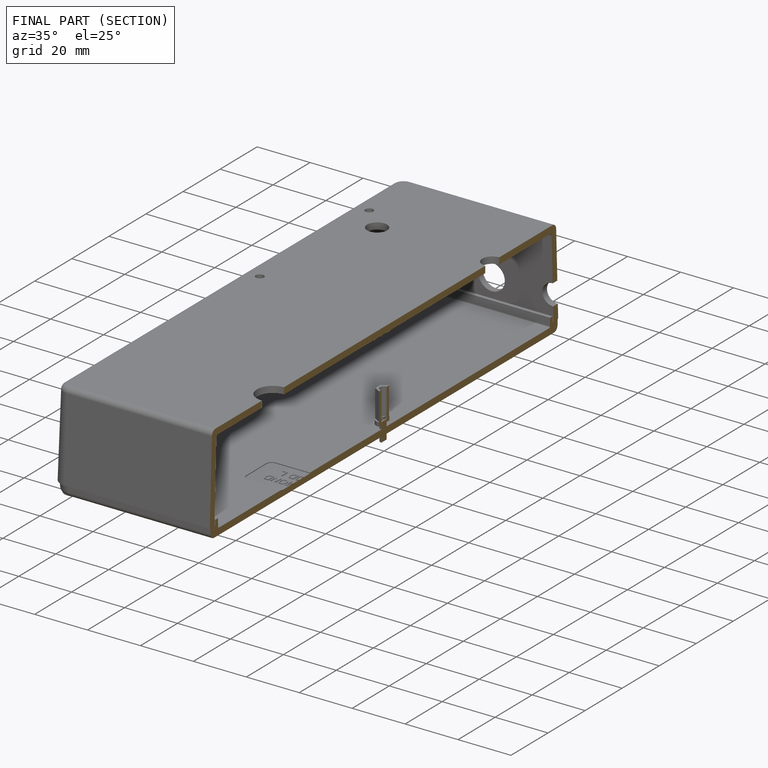
[diagram: finished part — half-section view (interior)]
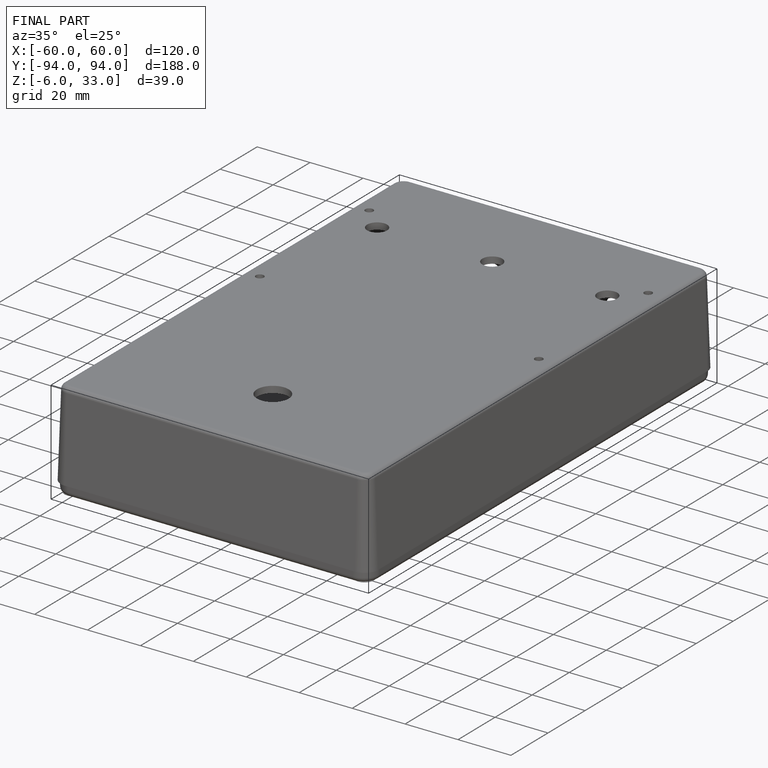
[diagram: finished part — iso view with bounding-box wireframe]
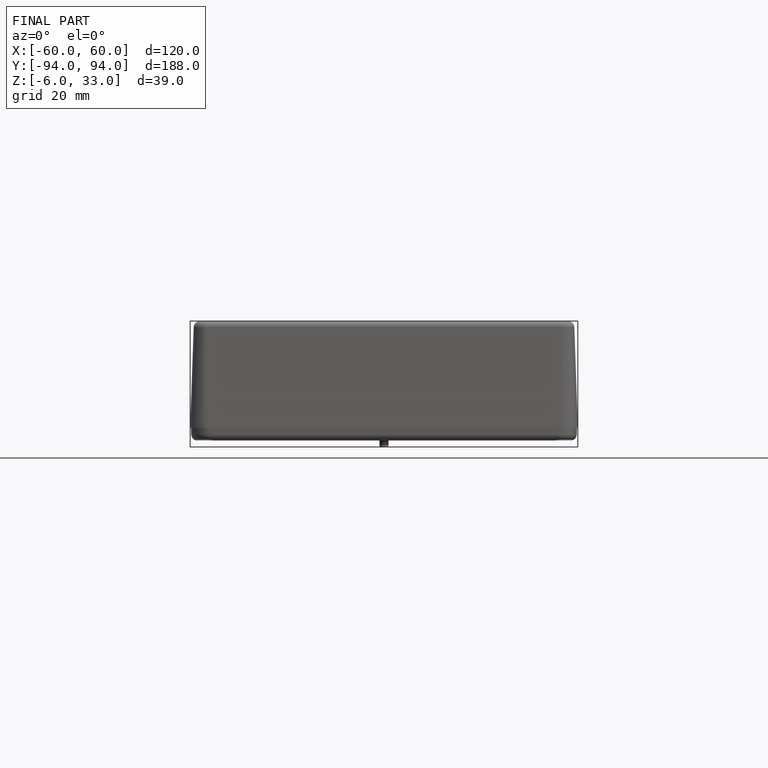
[diagram: finished part — front view with bounding-box wireframe]
